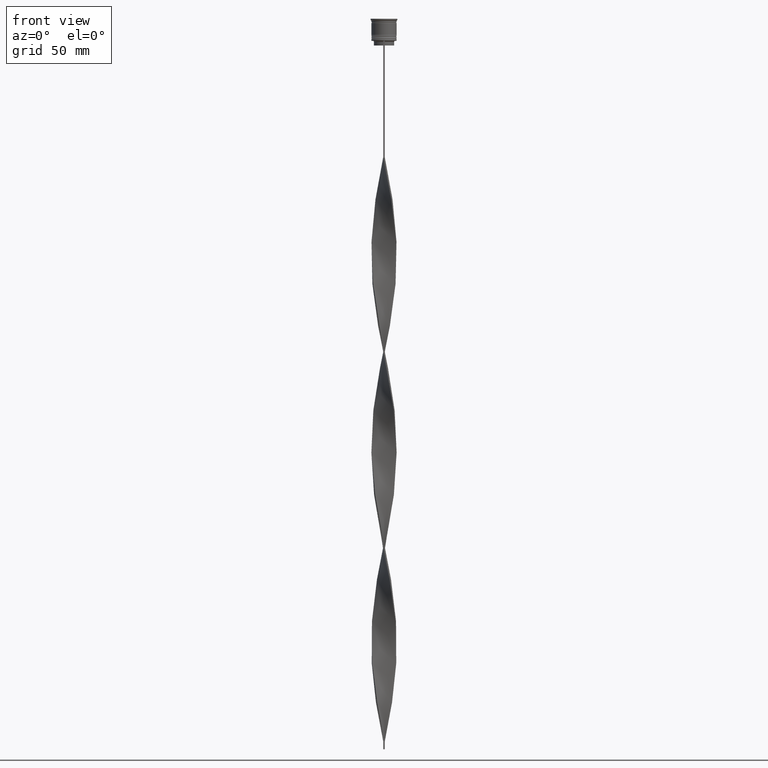
[diagram: clean part render]
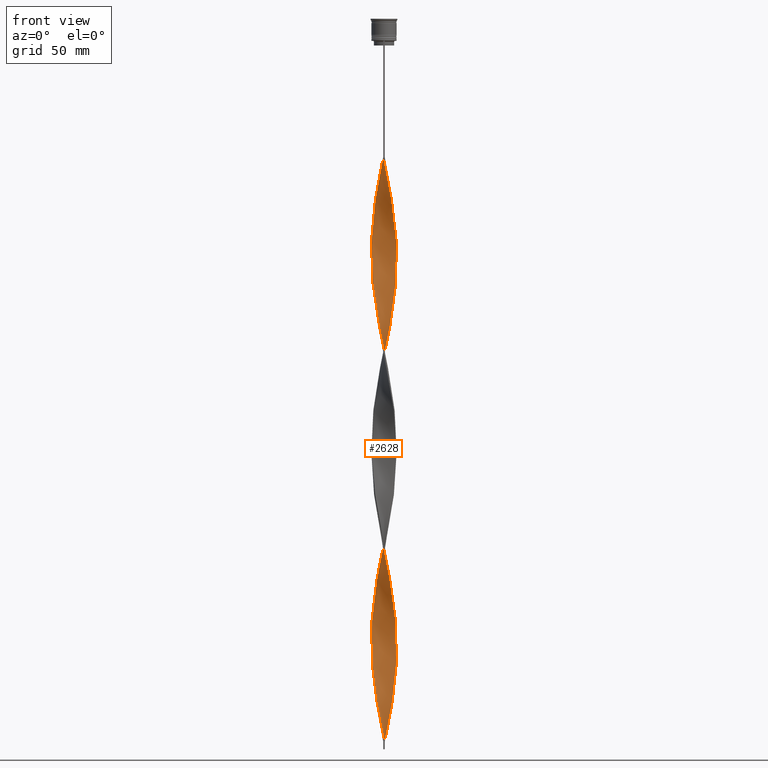
[diagram: same view with one face highlighted and labeled with its STEP entity id]
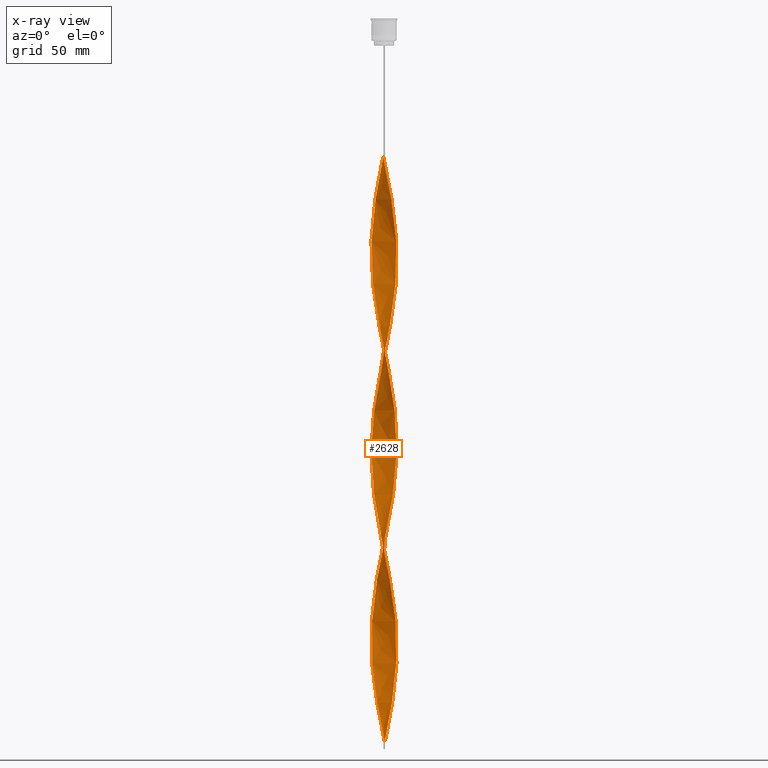
[diagram: x-ray of the same camera — body ghosted, the highlighted face saturated]
A machine part, front view. The second image highlights one B-rep face of the part: STEP entity #2628.
The next image is the same camera in x-ray: the body ghosted, the highlighted face saturated — about 0% of this face is hidden behind the body in this view.
In plain terms, the highlighted face is a freeform B-spline surface patch.
Its self-contained STEP definition (entity closure, byte-faithful):
#7 = CARTESIAN_POINT ( 'NONE',  ( 8.015471360206644746, -0.04710492232210114483, -270.8115942028985614 ) ) ;
#16 = CARTESIAN_POINT ( 'NONE',  ( -7.333114266084574950, 3.236577692648028748, -131.0144927536231876 ) ) ;
#21 = CARTESIAN_POINT ( 'NONE',  ( 3.729461898010225873, -7.095147211389628339, -109.5072463768115796 ) ) ;
#30 = CARTESIAN_POINT ( 'NONE',  ( 5.436559199960629307, -5.890146353472330176, -238.5507246376811565 ) ) ;
#42 = CARTESIAN_POINT ( 'NONE',  ( 0.5939902197518118765, 7.993570892838764763, -329.9565217391304373 ) ) ;
#47 = CARTESIAN_POINT ( 'NONE',  ( 1.584676165788138968, 7.857404243742526440, -206.2898550724637516 ) ) ;
#52 = CARTESIAN_POINT ( 'NONE',  ( 7.947228946841973674, 1.044773691512637104, -276.1884057971014386 ) ) ;
#60 = CARTESIAN_POINT ( 'NONE',  ( -1.584676165788137636, 7.857404243742519334, -340.7101449275362484 ) ) ;
#64 = CARTESIAN_POINT ( 'NONE',  ( -3.729461898010223209, 7.095147211389630115, -233.1739130434782510 ) ) ;
#67 = CARTESIAN_POINT ( 'NONE',  ( 5.505411142615667330, -5.825843127888297168, -120.2608695652173907 ) ) ;
#69 = CARTESIAN_POINT ( 'NONE',  ( -5.505411142615663778, -5.825843127888290951, -179.4057971014492807 ) ) ;
#72 = CARTESIAN_POINT ( 'NONE',  ( -7.730944694932262884, -2.117190148262229510, -157.8985507246376585 ) ) ;
#77 = CARTESIAN_POINT ( 'NONE',  ( 6.590928236321649258, 4.594592357818169326, -295.0072463768116791 ) ) ;
#83 = CARTESIAN_POINT ( 'NONE',  ( -7.586124921344943317, 2.646001252571963391, -262.7463768115941889 ) ) ;
#90 = CARTESIAN_POINT ( 'NONE',  ( 6.873049228353429463, -4.124462911050406966, -131.0144927536231876 ) ) ;
#94 = CARTESIAN_POINT ( 'NONE',  ( -2.122137340211640133, 7.749009424445332250, -96.06521739130434412 ) ) ;
#101 = CARTESIAN_POINT ( 'NONE',  ( 1.676915525582294952, 7.838236684360903261, -324.5797101449275033 ) ) ;
#109 = CARTESIAN_POINT ( 'NONE',  ( -0.04721499136463313401, 8.034200936960292694, -214.3550724637681242 ) ) ;
#117 = CARTESIAN_POINT ( 'NONE',  ( -8.018693425164364896, -0.5011683390727723619, -397.1666666666666856 ) ) ;
#124 = CARTESIAN_POINT ( 'NONE',  ( -3.645814369522656584, 7.138489867120500598, -351.4637681159420595 ) ) ;
#128 = CARTESIAN_POINT ( 'NONE',  ( -7.705527183036060102, -2.207906436308479936, -286.9420289855072497 ) ) ;
#132 = CARTESIAN_POINT ( 'NONE',  ( 1.140765448138979510, -7.952940848717254596, -96.06521739130434412 ) ) ;
#138 = CARTESIAN_POINT ( 'NONE',  ( -3.645814369522656584, 7.138489867120500598, -104.1304347826086882 ) ) ;
#144 = CARTESIAN_POINT ( 'NONE',  ( -0.5939902197518075466, -7.993570892838764763, -453.6231884057970660 ) ) ;
#149 = CARTESIAN_POINT ( 'NONE',  ( -2.639832812930095418, -7.568439913203885538, -324.5797101449275033 ) ) ;
#152 = CARTESIAN_POINT ( 'NONE',  ( -7.934400707984904599, -1.138106060579906043, -281.5652173913043725 ) ) ;
#155 = CARTESIAN_POINT ( 'NONE',  ( -7.586124921344937988, -2.646001252571960283, -407.9202898550724399 ) ) ;
#157 = CARTESIAN_POINT ( 'NONE',  ( -7.856552120720863286, 1.680833937442849368, -139.0797101449275317 ) ) ;
#173 = CARTESIAN_POINT ( 'NONE',  ( 1.140765448138979288, -7.952940848717255484, -343.3985507246376869 ) ) ;
#178 = CARTESIAN_POINT ( 'NONE',  ( -3.729461898010223209, 7.095147211389630115, -233.1739130434782510 ) ) ;
#182 = CARTESIAN_POINT ( 'NONE',  ( -3.157528285648546706, 7.387870401962427280, -348.7753623188405641 ) ) ;
#194 = CARTESIAN_POINT ( 'NONE',  ( 0.5939902197518079907, -7.993570892838771869, -340.7101449275362484 ) ) ;
#200 = CARTESIAN_POINT ( 'NONE',  ( 2.728603068017206645, -7.536890956966748156, -351.4637681159420595 ) ) ;
#214 = CARTESIAN_POINT ( 'NONE',  ( 2.728603068017206645, -7.536890956966748156, -351.4637681159420595 ) ) ;
#220 = CARTESIAN_POINT ( 'NONE',  ( -6.536472323464036727, -4.671738810705484468, -300.3840579710145562 ) ) ;
#238 = CARTESIAN_POINT ( 'NONE',  ( 5.839456248204610844, 5.518275516514861145, -429.4275362318841189 ) ) ;
#246 = CARTESIAN_POINT ( 'NONE',  ( -6.873049228353427686, 4.124462911050410518, -254.6811594202898448 ) ) ;
#264 = CARTESIAN_POINT ( 'NONE',  ( -1.140765448138979954, -7.952940848717248379, -203.6014492753623415 ) ) ;
#268 = CARTESIAN_POINT ( 'NONE',  ( 7.370647570865074272, -3.150167358427301334, -383.7246376811593791 ) ) ;
#284 = CARTESIAN_POINT ( 'NONE',  ( -5.903909729730553835, -5.449262689030142326, -176.7173913043478137 ) ) ;
#295 = CARTESIAN_POINT ( 'NONE',  ( 0.5000000000000008882, 8.000000000000003553, -458.9999999999999432 ) ) ;
#305 = CARTESIAN_POINT ( 'NONE',  ( -7.554502245351247147, 2.734978935174109616, -133.7028985507246546 ) ) ;
#310 = CARTESIAN_POINT ( 'NONE',  ( -0.4999999999999998890, -8.000000000000003553, -88.00000000000000000 ) ) ;
#317 = CARTESIAN_POINT ( 'NONE',  ( -3.244140533008800009, -7.350249393928923958, -192.8478260869565020 ) ) ;
#327 = CARTESIAN_POINT ( 'NONE',  ( 0.4999999999999989453, -7.999999999999996447, -211.6666666666666572 ) ) ;
#332 = CARTESIAN_POINT ( 'NONE',  ( 5.839456248204609956, 5.518275516514862034, -429.4275362318840621 ) ) ;
#338 = CARTESIAN_POINT ( 'NONE',  ( 7.856552120720863286, -1.680833937442848036, -262.7463768115941889 ) ) ;
#345 = CARTESIAN_POINT ( 'NONE',  ( -7.730944694932262884, -2.117190148262229510, -157.8985507246376585 ) ) ;
#350 = FACE_OUTER_BOUND ( 'NONE', #1363, .T. ) ;
#356 = CARTESIAN_POINT ( 'NONE',  ( 4.660847909256212951, 6.521234297798380375, -308.4492753623188150 ) ) ;
#364 = CARTESIAN_POINT ( 'NONE',  ( -7.370647570865068055, -3.150167358427297781, -410.6086956521738216 ) ) ;
#368 = CARTESIAN_POINT ( 'NONE',  ( 5.106912555500779050, -6.202423566746448458, -117.5724637681159379 ) ) ;
#376 = CARTESIAN_POINT ( 'NONE',  ( -1.676915525582294064, -7.838236684360903261, -200.9130434782608745 ) ) ;
#385 = CARTESIAN_POINT ( 'NONE',  ( 2.728603068017207534, 7.536890956966740163, -319.2028985507245693 ) ) ;
#389 = CARTESIAN_POINT ( 'NONE',  ( 0.5000000000000008882, 8.000000000000003553, -211.6666666666666572 ) ) ;
#392 = CARTESIAN_POINT ( 'NONE',  ( 8.012249295248937031, 0.5953781837169684898, -155.2101449275362199 ) ) ;
#394 = CARTESIAN_POINT ( 'NONE',  ( 5.106912555500778161, 6.202423566746439576, -305.7608695652173765 ) ) ;
#403 = CARTESIAN_POINT ( 'NONE',  ( 5.106912555500778161, 6.202423566746439576, -305.7608695652173196 ) ) ;
#408 = CARTESIAN_POINT ( 'NONE',  ( -7.155170220385204338, 3.654333464282641941, -257.3695652173913118 ) ) ;
#411 = CARTESIAN_POINT ( 'NONE',  ( 0.5939902197518079907, -7.993570892838771869, -93.37681159420290555 ) ) ;
#413 = CARTESIAN_POINT ( 'NONE',  ( -7.875764468519589556, -1.588379043952500513, -402.5434782608696196 ) ) ;
#421 = CARTESIAN_POINT ( 'NONE',  ( 7.155170220385199897, 3.654333464282636612, -289.6304347826086882 ) ) ;
#427 = CARTESIAN_POINT ( 'NONE',  ( -6.590928236321652811, 4.594592357818173767, -251.9927536231884915 ) ) ;
#436 = CARTESIAN_POINT ( 'NONE',  ( -5.436559199960629307, 5.890146353472331064, -114.8840579710144851 ) ) ;
#443 = CARTESIAN_POINT ( 'NONE',  ( -7.554502245351247147, 2.734978935174109616, -381.0362318840579974 ) ) ;
#449 = CARTESIAN_POINT ( 'NONE',  ( -8.012249295248937031, -0.5953781837169641600, -278.8768115942028203 ) ) ;
#458 = CARTESIAN_POINT ( 'NONE',  ( -4.134100453396768238, 6.889109332278574804, -354.1521739130434980 ) ) ;
#470 = CARTESIAN_POINT ( 'NONE',  ( -3.157528285648551147, -7.387870401962433498, -321.8913043478260647 ) ) ;
#476 = CARTESIAN_POINT ( 'NONE',  ( 2.213065603025611949, -7.723532520004569690, -101.4420289855072497 ) ) ;
#479 = CARTESIAN_POINT ( 'NONE',  ( -3.729461898010225429, -7.095147211389621233, -437.4927536231883778 ) ) ;
#487 = CARTESIAN_POINT ( 'NONE',  ( -3.244140533008799565, -7.350249393928923958, -440.1811594202897595 ) ) ;
#492 = CARTESIAN_POINT ( 'NONE',  ( 7.705527183036060102, 2.207906436308480380, -410.6086956521738216 ) ) ;
#495 = CARTESIAN_POINT ( 'NONE',  ( 4.660847909256214727, -6.521234297798388369, -362.2173913043478137 ) ) ;
#498 = CARTESIAN_POINT ( 'NONE',  ( 0.4999999999999989453, -7.999999999999996447, -458.9999999999999432 ) ) ;
#517 = CARTESIAN_POINT ( 'NONE',  ( 1.047214991364638914, 7.965799063039713523, -456.3115942028985614 ) ) ;
#522 = CARTESIAN_POINT ( 'NONE',  ( -3.244140533008800897, 7.350249393928931951, -230.4855072463767840 ) ) ;
#528 = B_SPLINE_CURVE_WITH_KNOTS ( 'NONE', 3,
 ( #1314, #1681, #3054, #2378 ),
 .UNSPECIFIED., .F., .F.,
 ( 4, 4 ),
 ( 0.000000000000000000, 1.000000000000000000 ),
 .UNSPECIFIED. ) ;
#540 = CARTESIAN_POINT ( 'NONE',  ( 5.106912555500779050, -6.202423566746448458, -364.9057971014492523 ) ) ;
#545 = CARTESIAN_POINT ( 'NONE',  ( -5.505411142615667330, 5.825843127888297168, -243.9275362318840337 ) ) ;
#560 = CARTESIAN_POINT ( 'NONE',  ( 5.436559199960635524, 5.890146353472334617, -432.1159420289855007 ) ) ;
#566 = CARTESIAN_POINT ( 'NONE',  ( -6.824099305140974181, -4.204957630413716174, -297.6956521739130039 ) ) ;
#583 = CARTESIAN_POINT ( 'NONE',  ( -3.729461898010225429, -7.095147211389621233, -190.1594202898550634 ) ) ;
#591 = CARTESIAN_POINT ( 'NONE',  ( -7.370647570865074272, 3.150167358427302222, -260.0579710144927503 ) ) ;
#608 = CARTESIAN_POINT ( 'NONE',  ( -7.856552120720862398, 1.680833937442849368, -139.0797101449275317 ) ) ;
#626 = CARTESIAN_POINT ( 'NONE',  ( -7.934400707984895718, 1.138106060579909817, -141.7681159420289703 ) ) ;
#635 = CARTESIAN_POINT ( 'NONE',  ( 7.705527183036052996, -2.207906436308480380, -260.0579710144927503 ) ) ;
#646 = CARTESIAN_POINT ( 'NONE',  ( -2.213065603025611949, -7.723532520004562585, -198.2246376811594359 ) ) ;
#651 = CARTESIAN_POINT ( 'NONE',  ( 0.5939902197518079907, -7.993570892838771869, -93.37681159420290555 ) ) ;
#658 = CARTESIAN_POINT ( 'NONE',  ( 5.033662151716653099, -6.262017190429803648, -235.8623188405797464 ) ) ;
#669 = CARTESIAN_POINT ( 'NONE',  ( 5.839456248204604627, -5.518275516514857593, -241.2391304347826519 ) ) ;
#675 = CARTESIAN_POINT ( 'NONE',  ( 7.333114266084581168, 3.236577692648030968, -415.9855072463768124 ) ) ;
#680 = CARTESIAN_POINT ( 'NONE',  ( 4.583881302556708448, -6.575563261354191447, -233.1739130434782510 ) ) ;
#689 = CARTESIAN_POINT ( 'NONE',  ( 6.873049228353425910, 4.124462911050398972, -292.3188405797101268 ) ) ;
#694 = CARTESIAN_POINT ( 'NONE',  ( 4.660847909256214727, -6.521234297798388369, -114.8840579710144851 ) ) ;
#700 = CARTESIAN_POINT ( 'NONE',  ( 5.903909729730553835, 5.449262689030141438, -300.3840579710145562 ) ) ;
#708 = CARTESIAN_POINT ( 'NONE',  ( -2.639832812930093198, 7.568439913203879321, -346.0869565217391255 ) ) ;
#713 = CARTESIAN_POINT ( 'NONE',  ( 6.536472323464036727, 4.671738810705485356, -176.7173913043478137 ) ) ;
#719 = CARTESIAN_POINT ( 'NONE',  ( 7.705527183036060102, 2.207906436308480380, -163.2753623188405641 ) ) ;
#722 = CARTESIAN_POINT ( 'NONE',  ( -2.728603068017206645, -7.536890956966740163, -195.5362318840579405 ) ) ;
#733 = CARTESIAN_POINT ( 'NONE',  ( 8.015471360206644746, -0.04710492232210114483, -270.8115942028985614 ) ) ;
#739 = CARTESIAN_POINT ( 'NONE',  ( 7.730944694932269989, -2.117190148262233951, -141.7681159420289703 ) ) ;
#740 = VERTEX_POINT ( 'NONE', #3130 ) ;
#746 = CARTESIAN_POINT ( 'NONE',  ( -6.873049228353423246, -4.124462911050403413, -415.9855072463768124 ) ) ;
#754 = CARTESIAN_POINT ( 'NONE',  ( -0.4999999999999998890, 7.999999999999996447, -335.3333333333333144 ) ) ;
#759 = CARTESIAN_POINT ( 'NONE',  ( -5.505411142615667330, 5.825843127888297168, -243.9275362318840337 ) ) ;
#765 = CARTESIAN_POINT ( 'NONE',  ( -5.436559199960629307, 5.890146353472331064, -362.2173913043478137 ) ) ;
#773 = CARTESIAN_POINT ( 'NONE',  ( 8.012249295248929926, -0.5953781837169733748, -268.1231884057971797 ) ) ;
#779 = CARTESIAN_POINT ( 'NONE',  ( 7.155170220385205226, -3.654333464282639721, -133.7028985507246546 ) ) ;
#785 = CARTESIAN_POINT ( 'NONE',  ( 7.554502245351253364, 2.734978935174110948, -165.9637681159420595 ) ) ;
#788 = CARTESIAN_POINT ( 'NONE',  ( -5.106912555500773720, -6.202423566746443129, -429.4275362318840621 ) ) ;
#806 = CARTESIAN_POINT ( 'NONE',  ( -6.187964285834326006, -5.095007163610167922, -303.0724637681159379 ) ) ;
#809 = VERTEX_POINT ( 'NONE', #4191 ) ;
#812 = CARTESIAN_POINT ( 'NONE',  ( 6.824099305140973293, 4.204957630413717062, -174.0289855072463752 ) ) ;
#815 = CARTESIAN_POINT ( 'NONE',  ( -7.934400707984895718, 1.138106060579909817, -389.1014492753622562 ) ) ;
#828 = CARTESIAN_POINT ( 'NONE',  ( -7.554502245351254253, -2.734978935174111836, -289.6304347826086882 ) ) ;
#832 = CARTESIAN_POINT ( 'NONE',  ( 6.873049228353429463, -4.124462911050406966, -378.3478260869565020 ) ) ;
#835 = CARTESIAN_POINT ( 'NONE',  ( -7.730944694932262884, -2.117190148262229510, -405.2318840579709445 ) ) ;
#842 = CARTESIAN_POINT ( 'NONE',  ( -1.676915525582294064, -7.838236684360903261, -448.2463768115941889 ) ) ;
#847 = CARTESIAN_POINT ( 'NONE',  ( 3.729461898010225873, -7.095147211389628339, -356.8405797101449366 ) ) ;
#851 = CARTESIAN_POINT ( 'NONE',  ( -2.122137340211641021, -7.749009424445339356, -327.2681159420290555 ) ) ;
#871 = CARTESIAN_POINT ( 'NONE',  ( 0.5000000000000008882, 8.000000000000003553, -458.9999999999999432 ) ) ;
#876 = CARTESIAN_POINT ( 'NONE',  ( -7.586124921344943317, 2.646001252571962947, -262.7463768115941889 ) ) ;
#888 = CARTESIAN_POINT ( 'NONE',  ( 0.4999999999999989453, -7.999999999999996447, -458.9999999999999432 ) ) ;
#893 = CARTESIAN_POINT ( 'NONE',  ( 1.676915525582295841, -7.838236684360910367, -346.0869565217391255 ) ) ;
#897 = CARTESIAN_POINT ( 'NONE',  ( -3.157528285648551147, -7.387870401962433498, -321.8913043478260647 ) ) ;
#912 = CARTESIAN_POINT ( 'NONE',  ( 1.047214991364632919, -7.965799063039709971, -214.3550724637681242 ) ) ;
#918 = CARTESIAN_POINT ( 'NONE',  ( -7.705527183036060102, -2.207906436308479936, -286.9420289855072497 ) ) ;
#935 = CARTESIAN_POINT ( 'NONE',  ( -4.134100453396768238, 6.889109332278574804, -106.8188405797101268 ) ) ;
#941 = CARTESIAN_POINT ( 'NONE',  ( 4.583881302556717330, 6.575563261354193223, -437.4927536231883778 ) ) ;
#957 = CARTESIAN_POINT ( 'NONE',  ( 7.333114266084573174, -3.236577692648032745, -254.6811594202898448 ) ) ;
#974 = CARTESIAN_POINT ( 'NONE',  ( -1.047214991364636028, 7.965799063039706418, -90.68840579710145278 ) ) ;
#978 = CARTESIAN_POINT ( 'NONE',  ( 7.554502245351253364, 2.734978935174110948, -413.2971014492753739 ) ) ;
#984 = CARTESIAN_POINT ( 'NONE',  ( 8.018693425164364896, 0.5011683390727713627, -273.4999999999999432 ) ) ;
#994 = CARTESIAN_POINT ( 'NONE',  ( 4.583881302556708448, -6.575563261354191447, -233.1739130434782510 ) ) ;
#1000 = CARTESIAN_POINT ( 'NONE',  ( 2.122137340211643686, 7.749009424445339356, -450.9347826086956275 ) ) ;
#1007 = CARTESIAN_POINT ( 'NONE',  ( -4.214783263011647740, -6.840045028850322950, -187.4710144927535964 ) ) ;
#1019 = CARTESIAN_POINT ( 'NONE',  ( 7.875764468519589556, 1.588379043952496072, -278.8768115942028203 ) ) ;
#1023 = CARTESIAN_POINT ( 'NONE',  ( 5.436559199960635524, 5.890146353472334617, -432.1159420289855007 ) ) ;
#1028 = CARTESIAN_POINT ( 'NONE',  ( 6.536472323464028733, -4.671738810705482692, -246.6159420289854722 ) ) ;
#1035 = CARTESIAN_POINT ( 'NONE',  ( -5.106912555500773720, -6.202423566746443129, -429.4275362318841189 ) ) ;
#1040 = CARTESIAN_POINT ( 'NONE',  ( 7.934400707984902823, 1.138106060579908485, -157.8985507246376585 ) ) ;
#1045 = CARTESIAN_POINT ( 'NONE',  ( 6.590928236321652811, -4.594592357818173767, -128.3260869565217206 ) ) ;
#1047 = CARTESIAN_POINT ( 'NONE',  ( 6.590928236321649258, 4.594592357818169326, -295.0072463768116222 ) ) ;
#1054 = CARTESIAN_POINT ( 'NONE',  ( 7.586124921344937988, 2.646001252571958950, -284.2536231884058111 ) ) ;
#1061 = CARTESIAN_POINT ( 'NONE',  ( -4.660847909256214727, 6.521234297798387480, -238.5507246376811565 ) ) ;
#1067 = CARTESIAN_POINT ( 'NONE',  ( 2.728603068017206645, -7.536890956966748156, -104.1304347826086882 ) ) ;
#1070 = CARTESIAN_POINT ( 'NONE',  ( 2.728603068017207534, 7.536890956966740163, -319.2028985507245693 ) ) ;
#1073 = CARTESIAN_POINT ( 'NONE',  ( -5.033662151716653987, 6.262017190429803648, -112.1956521739130466 ) ) ;
#1080 = CARTESIAN_POINT ( 'NONE',  ( -6.824099305140966187, 4.204957630413713510, -372.9710144927536248 ) ) ;
#1086 = CARTESIAN_POINT ( 'NONE',  ( -5.903909729730557387, 5.449262689030150320, -246.6159420289854722 ) ) ;
#1090 = CARTESIAN_POINT ( 'NONE',  ( 2.639832812930094530, 7.568439913203885538, -200.9130434782608745 ) ) ;
#1093 = CARTESIAN_POINT ( 'NONE',  ( -2.213065603025611505, -7.723532520004561697, -445.5579710144927503 ) ) ;
#1102 = CARTESIAN_POINT ( 'NONE',  ( -2.122137340211640577, 7.749009424445332250, -343.3985507246376869 ) ) ;
#1107 = CARTESIAN_POINT ( 'NONE',  ( -7.947228946841980779, 1.044773691512640434, -270.8115942028985614 ) ) ;
#1110 = CARTESIAN_POINT ( 'NONE',  ( 4.214783263011651293, -6.840045028850329167, -112.1956521739130466 ) ) ;
#1113 = CARTESIAN_POINT ( 'NONE',  ( -0.04721499136463834512, -8.034200936960287365, -456.3115942028985614 ) ) ;
#1115 = CARTESIAN_POINT ( 'NONE',  ( -6.536472323464030509, 4.671738810705480915, -122.9492753623188577 ) ) ;
#1127 = CARTESIAN_POINT ( 'NONE',  ( 7.554502245351254253, 2.734978935174110948, -165.9637681159420595 ) ) ;
#1132 = CARTESIAN_POINT ( 'NONE',  ( 7.155170220385205226, -3.654333464282639721, -133.7028985507246546 ) ) ;
#1138 = CARTESIAN_POINT ( 'NONE',  ( -7.333114266084574950, 3.236577692648028748, -131.0144927536231876 ) ) ;
#1151 = VECTOR ( 'NONE', #3659, 1000.000000000000000 ) ;
#1154 = CARTESIAN_POINT ( 'NONE',  ( 4.214783263011650405, -6.840045028850329167, -359.5289855072463752 ) ) ;
#1159 = CARTESIAN_POINT ( 'NONE',  ( 5.505411142615667330, -5.825843127888297168, -367.5942028985506909 ) ) ;
#1162 = CARTESIAN_POINT ( 'NONE',  ( -3.244140533008800009, -7.350249393928923958, -440.1811594202898164 ) ) ;
#1175 = CARTESIAN_POINT ( 'NONE',  ( 4.583881302556717330, 6.575563261354193223, -437.4927536231883778 ) ) ;
#1181 = CARTESIAN_POINT ( 'NONE',  ( 1.047214991364638914, 7.965799063039713523, -208.9782608695652186 ) ) ;
#1185 = CARTESIAN_POINT ( 'NONE',  ( -6.536472323464030509, 4.671738810705480915, -370.2826086956521863 ) ) ;
#1196 = CARTESIAN_POINT ( 'NONE',  ( 7.554502245351254253, 2.734978935174110948, -413.2971014492753739 ) ) ;
#1202 = CARTESIAN_POINT ( 'NONE',  ( -7.947228946841980779, 1.044773691512640434, -270.8115942028985614 ) ) ;
#1222 = CARTESIAN_POINT ( 'NONE',  ( 8.018693425164372002, -0.5011683390727734722, -397.1666666666666288 ) ) ;
#1228 = CARTESIAN_POINT ( 'NONE',  ( 0.5000000000000008882, 8.000000000000003553, -211.6666666666666572 ) ) ;
#1245 = CARTESIAN_POINT ( 'NONE',  ( -1.584676165788143409, -7.857404243742526440, -329.9565217391304373 ) ) ;
#1251 = CARTESIAN_POINT ( 'NONE',  ( 1.676915525582295841, -7.838236684360910367, -346.0869565217391255 ) ) ;
#1267 = CARTESIAN_POINT ( 'NONE',  ( -7.370647570865068055, -3.150167358427297781, -163.2753623188405641 ) ) ;
#1271 = CARTESIAN_POINT ( 'NONE',  ( 3.157528285648550259, 7.387870401962433498, -445.5579710144927503 ) ) ;
#1288 = CARTESIAN_POINT ( 'NONE',  ( -7.875764468519589556, -1.588379043952500291, -155.2101449275362199 ) ) ;
#1311 = CARTESIAN_POINT ( 'NONE',  ( -1.584676165788137636, 7.857404243742519334, -93.37681159420290555 ) ) ;
#1314 = CARTESIAN_POINT ( 'NONE',  ( 0.5000000000000008882, 8.000000000000003553, -458.9999999999999432 ) ) ;
#1316 = CARTESIAN_POINT ( 'NONE',  ( 8.018693425164370225, -0.5011683390727733611, -397.1666666666666856 ) ) ;
#1322 = CARTESIAN_POINT ( 'NONE',  ( 1.140765448138977733, 7.952940848717247491, -327.2681159420290555 ) ) ;
#1323 = CARTESIAN_POINT ( 'NONE',  ( -0.4999999999999998890, -8.000000000000003553, -88.00000000000000000 ) ) ;
#1331 = CARTESIAN_POINT ( 'NONE',  ( 4.134100453396767350, -6.889109332278575692, -230.4855072463767840 ) ) ;
#1342 = CARTESIAN_POINT ( 'NONE',  ( 1.047214991364632919, -7.965799063039709971, -214.3550724637681242 ) ) ;
#1352 = CARTESIAN_POINT ( 'NONE',  ( -0.04721499136463833818, -8.034200936960285588, -208.9782608695651902 ) ) ;
#1356 = CARTESIAN_POINT ( 'NONE',  ( 7.947228946841980779, -1.044773691512637548, -394.4782608695651902 ) ) ;
#1363 = EDGE_LOOP ( 'NONE', ( #2823, #3017, #3855, #1977 ) ) ;
#1364 = CARTESIAN_POINT ( 'NONE',  ( 7.111726286817905418, -3.738176450121948768, -251.9927536231884631 ) ) ;
#1375 = CARTESIAN_POINT ( 'NONE',  ( -8.018693425164364896, -0.5011683390727723619, -397.1666666666666288 ) ) ;
#1379 = CARTESIAN_POINT ( 'NONE',  ( 6.247418983026105543, -5.021927523424159823, -125.6376811594202820 ) ) ;
#1382 = CARTESIAN_POINT ( 'NONE',  ( -0.4999999999999998890, -8.000000000000003553, -88.00000000000000000 ) ) ;
#1384 = CARTESIAN_POINT ( 'NONE',  ( 7.730944694932264660, 2.117190148262227289, -281.5652173913043725 ) ) ;
#1391 = CARTESIAN_POINT ( 'NONE',  ( -8.012249295248929926, 0.5953781837169687119, -391.7898550724637516 ) ) ;
#1397 = CARTESIAN_POINT ( 'NONE',  ( -2.728603068017204425, 7.536890956966749044, -227.7971014492753454 ) ) ;
#1400 = CARTESIAN_POINT ( 'NONE',  ( 7.934400707984902823, 1.138106060579908485, -157.8985507246376585 ) ) ;
#1402 = CARTESIAN_POINT ( 'NONE',  ( 6.824099305140966187, -4.204957630413714398, -249.3043478260869392 ) ) ;
#1405 = CARTESIAN_POINT ( 'NONE',  ( -7.155170220385199897, -3.654333464282636612, -165.9637681159420595 ) ) ;
#1410 = CARTESIAN_POINT ( 'NONE',  ( -5.436559199960629307, 5.890146353472331064, -362.2173913043478137 ) ) ;
#1416 = CARTESIAN_POINT ( 'NONE',  ( -3.244140533008800897, 7.350249393928931951, -230.4855072463767840 ) ) ;
#1423 = CARTESIAN_POINT ( 'NONE',  ( 7.947228946841980779, -1.044773691512637548, -147.1449275362318758 ) ) ;
#1437 = CARTESIAN_POINT ( 'NONE',  ( -5.033662151716653987, 6.262017190429803648, -359.5289855072463752 ) ) ;
#1442 = CARTESIAN_POINT ( 'NONE',  ( -1.140765448138979510, 7.952940848717255484, -219.7318840579710297 ) ) ;
#1446 = CARTESIAN_POINT ( 'NONE',  ( 1.676915525582295841, -7.838236684360910367, -98.75362318840578268 ) ) ;
#1449 = CARTESIAN_POINT ( 'NONE',  ( -4.214783263011647740, -6.840045028850322950, -434.8043478260869392 ) ) ;
#1452 = CARTESIAN_POINT ( 'NONE',  ( -1.584676165788137636, 7.857404243742519334, -93.37681159420290555 ) ) ;
#1462 = CARTESIAN_POINT ( 'NONE',  ( 1.047214991364638914, 7.965799063039713523, -208.9782608695651902 ) ) ;
#1463 =( BOUNDED_SURFACE ( )  B_SPLINE_SURFACE ( 1, 2, ( 
 ( #310, #2974, #651, #2663, #1682, #3676, #2687, #3011, #21, #2362, #694, #368, #2096, #2791, #1379, #3423, #4131, #779, #2707, #1705, #739, #3447, #2769, #2401, #4045, #1770, #1040, #3803, #3777, #1127, #3736, #3712, #3035, #713, #2466, #2726, #2379, #2034, #2055, #3383, #3073, #3359, #3094, #4109, #47, #1462, #389, #109, #1728, #1442, #3055, #4087, #1397, #1416, #64, #4062, #1061, #2076, #759, #1086, #3403, #427, #2423, #408, #1750, #83, #2748, #3757, #1107, #2443, #2118, #449, #1796, #3116, #128, #828, #2139, #2510, #2160, #3470, #806, #1863, #1550, #3227, #3187, #1837, #1531, #470, #149, #3513, #1245, #2878, #3137, #2529, #194, #173, #893, #2858, #214, #3489, #847, #1154, #2839, #540, #2555, #4198, #2491, #4221, #3207, #1815, #3847, #3559, #3161, #1484, #2576, #1222, #1512, #3896, #3872, #4243, #492, #1196, #3538, #1576, #2208, #2905, #2228, #238, #560, #2182, #1175, #3825, #2815, #1901, #4156, #1882, #4179, #517, #871 ),
 ( #2275, #974, #1311, #2946, #4285, #3937, #3295, #935, #2596, #4308, #3337, #1678, #3609, #2659, #3999, #1598, #16, #305, #3628, #608, #626, #2312, #2968, #1968, #3916, #1288, #345, #1636, #1267, #2640, #4327, #3980, #2335, #284, #3318, #3645, #1659, #2011, #583, #3007, #3580, #646, #1989, #264, #1948, #1352, #327, #912, #2248, #3671, #2988, #1926, #3275, #1331, #994, #2927, #2296, #669, #2618, #1617, #3253, #3963, #957, #4264, #2682, #3729, #3417, #773, #733, #3708, #3398, #1019, #2030, #1054, #3111, #421, #689, #77, #2072, #2049, #2764, #403, #2091, #2703, #2720, #3030, #385, #2418, #101, #1744, #42, #1764, #754, #2357, #60, #1102, #708, #4024, #124, #3088, #3377, #1437, #1410, #1790, #2374, #3067, #1080, #3439, #4080, #443, #4104, #2111, #2438, #1391, #3051, #1375, #3689, #3772, #3355, #3752, #364, #1724, #4057, #1699, #2394, #2741, #4040, #1035, #4148, #2853, #3181, #487, #1832, #1479, #842, #2809, #144, #1856, #888 ) ),
 .UNSPECIFIED., .F., .F., .F. ) 
 B_SPLINE_SURFACE_WITH_KNOTS ( ( 2, 2 ),
 ( 3, 2, 2, 2, 2, 2, 2, 2, 2, 2, 2, 2, 2, 2, 2, 2, 2, 2, 2, 2, 2, 2, 2, 2, 2, 2, 2, 2, 2, 2, 2, 2, 2, 2, 2, 2, 2, 2, 2, 2, 2, 2, 2, 2, 2, 2, 2, 2, 2, 2, 2, 2, 2, 2, 2, 2, 2, 2, 2, 2, 2, 2, 2, 2, 2, 2, 2, 2, 2, 3 ),
 ( 0.000000000000000000, 1.000000000000000000 ),
 ( 0.000000000000000000, 0.01086956521739130405, 0.02173913043478260809, 0.03260869565217391214, 0.04347826086956521618, 0.05434782608695652023, 0.06521739130434782428, 0.07608695652173913526, 0.08695652173913043237, 0.09782608695652174335, 0.1086956521739130405, 0.1195652173913043514, 0.1304347826086956486, 0.1413043478260869457, 0.1521739130434782705, 0.1630434782608695676, 0.1739130434782608647, 0.1847826086956521618, 0.1956521739130434867, 0.2065217391304347838, 0.2173913043478260809, 0.2282608695652173780, 0.2391304347826087029, 0.2500000000000000000, 0.2608695652173912971, 0.2717391304347825942, 0.2826086956521738913, 0.2934782608695652439, 0.3043478260869565410, 0.3152173913043478382, 0.3260869565217391353, 0.3369565217391304324, 0.3478260869565217295, 0.3586956521739130266, 0.3695652173913043237, 0.3804347826086956763, 0.3913043478260869734, 0.4021739130434782705, 0.4130434782608695676, 0.4239130434782608647, 0.4347826086956521618, 0.4456521739130434590, 0.4565217391304347561, 0.4673913043478261087, 0.4782608695652174058, 0.4891304347826087029, 0.5000000000000000000, 0.5108695652173913526, 0.5217391304347825942, 0.5326086956521739468, 0.5434782608695651884, 0.5543478260869565410, 0.5652173913043477826, 0.5760869565217391353, 0.5869565217391304879, 0.5978260869565217295, 0.6086956521739130821, 0.6195652173913043237, 0.6304347826086956763, 0.6413043478260869179, 0.6521739130434782705, 0.6630434782608695121, 0.6739130434782608647, 0.6847826086956522174, 0.6956521739130434590, 0.7065217391304348116, 0.7173913043478260532, 0.7282608695652174058, 0.7391304347826086474, 0.7500000000000000000 ),
 .UNSPECIFIED. ) 
 GEOMETRIC_REPRESENTATION_ITEM ( )  RATIONAL_B_SPLINE_SURFACE ( (
 ( 1.000000000000000000, 0.9976687691905391508, 1.000000000000000000, 0.9976687691905391508, 1.000000000000000000, 0.9976687691905391508, 1.000000000000000000, 0.9976687691905391508, 1.000000000000000000, 0.9976687691905391508, 1.000000000000000000, 0.9976687691905391508, 1.000000000000000000, 0.9976687691905391508, 1.000000000000000000, 0.9976687691905391508, 1.000000000000000000, 0.9976687691905391508, 1.000000000000000000, 0.9976687691905391508, 1.000000000000000000, 0.9976687691905391508, 1.000000000000000000, 0.9976687691905391508, 1.000000000000000000, 0.9976687691905391508, 1.000000000000000000, 0.9976687691905391508, 1.000000000000000000, 0.9976687691905391508, 1.000000000000000000, 0.9976687691905391508, 1.000000000000000000, 0.9976687691905391508, 1.000000000000000000, 0.9976687691905391508, 1.000000000000000000, 0.9976687691905391508, 1.000000000000000000, 0.9976687691905391508, 1.000000000000000000, 0.9976687691905391508, 1.000000000000000000, 0.9976687691905391508, 1.000000000000000000, 0.9976687691905391508, 1.000000000000000000, 0.9976687691905391508, 1.000000000000000000, 0.9976687691905391508, 1.000000000000000000, 0.9976687691905391508, 1.000000000000000000, 0.9976687691905391508, 1.000000000000000000, 0.9976687691905391508, 1.000000000000000000, 0.9976687691905391508, 1.000000000000000000, 0.9976687691905391508, 1.000000000000000000, 0.9976687691905391508, 1.000000000000000000, 0.9976687691905391508, 1.000000000000000000, 0.9976687691905391508, 1.000000000000000000, 0.9976687691905391508, 1.000000000000000000, 0.9976687691905391508, 1.000000000000000000, 0.9976687691905391508, 1.000000000000000000, 0.9976687691905391508, 1.000000000000000000, 0.9976687691905391508, 1.000000000000000000, 0.9976687691905391508, 1.000000000000000000, 0.9976687691905391508, 1.000000000000000000, 0.9976687691905391508, 1.000000000000000000, 0.9976687691905391508, 1.000000000000000000, 0.9976687691905391508, 1.000000000000000000, 0.9976687691905391508, 1.000000000000000000, 0.9976687691905391508, 1.000000000000000000, 0.9976687691905391508, 1.000000000000000000, 0.9976687691905391508, 1.000000000000000000, 0.9976687691905391508, 1.000000000000000000, 0.9976687691905391508, 1.000000000000000000, 0.9976687691905391508, 1.000000000000000000, 0.9976687691905391508, 1.000000000000000000, 0.9976687691905391508, 1.000000000000000000, 0.9976687691905391508, 1.000000000000000000, 0.9976687691905391508, 1.000000000000000000, 0.9976687691905391508, 1.000000000000000000, 0.9976687691905391508, 1.000000000000000000, 0.9976687691905391508, 1.000000000000000000, 0.9976687691905391508, 1.000000000000000000, 0.9976687691905391508, 1.000000000000000000, 0.9976687691905391508, 1.000000000000000000, 0.9976687691905391508, 1.000000000000000000, 0.9976687691905391508, 1.000000000000000000, 0.9976687691905391508, 1.000000000000000000, 0.9976687691905391508, 1.000000000000000000, 0.9976687691905391508, 1.000000000000000000, 0.9976687691905391508, 1.000000000000000000, 0.9976687691905391508, 1.000000000000000000, 0.9976687691905391508, 1.000000000000000000, 0.9976687691905391508, 1.000000000000000000),
 ( 1.000000000000000000, 0.9976687691905391508, 1.000000000000000000, 0.9976687691905391508, 1.000000000000000000, 0.9976687691905391508, 1.000000000000000000, 0.9976687691905391508, 1.000000000000000000, 0.9976687691905391508, 1.000000000000000000, 0.9976687691905391508, 1.000000000000000000, 0.9976687691905391508, 1.000000000000000000, 0.9976687691905391508, 1.000000000000000000, 0.9976687691905391508, 1.000000000000000000, 0.9976687691905391508, 1.000000000000000000, 0.9976687691905391508, 1.000000000000000000, 0.9976687691905391508, 1.000000000000000000, 0.9976687691905391508, 1.000000000000000000, 0.9976687691905391508, 1.000000000000000000, 0.9976687691905391508, 1.000000000000000000, 0.9976687691905391508, 1.000000000000000000, 0.9976687691905391508, 1.000000000000000000, 0.9976687691905391508, 1.000000000000000000, 0.9976687691905391508, 1.000000000000000000, 0.9976687691905391508, 1.000000000000000000, 0.9976687691905391508, 1.000000000000000000, 0.9976687691905391508, 1.000000000000000000, 0.9976687691905391508, 1.000000000000000000, 0.9976687691905391508, 1.000000000000000000, 0.9976687691905391508, 1.000000000000000000, 0.9976687691905391508, 1.000000000000000000, 0.9976687691905391508, 1.000000000000000000, 0.9976687691905391508, 1.000000000000000000, 0.9976687691905391508, 1.000000000000000000, 0.9976687691905391508, 1.000000000000000000, 0.9976687691905391508, 1.000000000000000000, 0.9976687691905391508, 1.000000000000000000, 0.9976687691905391508, 1.000000000000000000, 0.9976687691905391508, 1.000000000000000000, 0.9976687691905391508, 1.000000000000000000, 0.9976687691905391508, 1.000000000000000000, 0.9976687691905391508, 1.000000000000000000, 0.9976687691905391508, 1.000000000000000000, 0.9976687691905391508, 1.000000000000000000, 0.9976687691905391508, 1.000000000000000000, 0.9976687691905391508, 1.000000000000000000, 0.9976687691905391508, 1.000000000000000000, 0.9976687691905391508, 1.000000000000000000, 0.9976687691905391508, 1.000000000000000000, 0.9976687691905391508, 1.000000000000000000, 0.9976687691905391508, 1.000000000000000000, 0.9976687691905391508, 1.000000000000000000, 0.9976687691905391508, 1.000000000000000000, 0.9976687691905391508, 1.000000000000000000, 0.9976687691905391508, 1.000000000000000000, 0.9976687691905391508, 1.000000000000000000, 0.9976687691905391508, 1.000000000000000000, 0.9976687691905391508, 1.000000000000000000, 0.9976687691905391508, 1.000000000000000000, 0.9976687691905391508, 1.000000000000000000, 0.9976687691905391508, 1.000000000000000000, 0.9976687691905391508, 1.000000000000000000, 0.9976687691905391508, 1.000000000000000000, 0.9976687691905391508, 1.000000000000000000, 0.9976687691905391508, 1.000000000000000000, 0.9976687691905391508, 1.000000000000000000, 0.9976687691905391508, 1.000000000000000000, 0.9976687691905391508, 1.000000000000000000, 0.9976687691905391508, 1.000000000000000000, 0.9976687691905391508, 1.000000000000000000, 0.9976687691905391508, 1.000000000000000000, 0.9976687691905391508, 1.000000000000000000, 0.9976687691905391508, 1.000000000000000000, 0.9976687691905391508, 1.000000000000000000) ) ) 
 REPRESENTATION_ITEM ( '' )  SURFACE ( )  );
#1467 = CARTESIAN_POINT ( 'NONE',  ( 4.660847909256214727, -6.521234297798388369, -114.8840579710144851 ) ) ;
#1479 = CARTESIAN_POINT ( 'NONE',  ( -2.213065603025611949, -7.723532520004562585, -445.5579710144927503 ) ) ;
#1484 = CARTESIAN_POINT ( 'NONE',  ( 7.875764468519596662, -1.588379043952502512, -391.7898550724637516 ) ) ;
#1490 = CARTESIAN_POINT ( 'NONE',  ( 1.140765448138979510, -7.952940848717254596, -343.3985507246376869 ) ) ;
#1493 = CARTESIAN_POINT ( 'NONE',  ( -6.590928236321648370, -4.594592357818170214, -418.6739130434783078 ) ) ;
#1512 = CARTESIAN_POINT ( 'NONE',  ( 8.015471360206651852, 0.04710492232209777946, -399.8550724637680673 ) ) ;
#1517 = CARTESIAN_POINT ( 'NONE',  ( -4.660847909256214727, 6.521234297798387480, -238.5507246376811565 ) ) ;
#1520 = CARTESIAN_POINT ( 'NONE',  ( -7.370647570865068055, -3.150167358427297781, -410.6086956521738216 ) ) ;
#1531 = CARTESIAN_POINT ( 'NONE',  ( -3.645814369522663245, -7.138489867120505039, -319.2028985507245693 ) ) ;
#1536 = CARTESIAN_POINT ( 'NONE',  ( 5.903909729730559164, -5.449262689030147655, -370.2826086956521863 ) ) ;
#1550 = CARTESIAN_POINT ( 'NONE',  ( -5.436559199960636413, -5.890146353472333729, -308.4492753623188150 ) ) ;
#1556 = CARTESIAN_POINT ( 'NONE',  ( -1.676915525582294064, 7.838236684360910367, -222.4202898550724399 ) ) ;
#1576 = CARTESIAN_POINT ( 'NONE',  ( 7.111726286817910747, 3.738176450121950101, -418.6739130434783078 ) ) ;
#1582 = CARTESIAN_POINT ( 'NONE',  ( 0.04721499136463628427, -8.034200936960294470, -338.0217391304347530 ) ) ;
#1598 = CARTESIAN_POINT ( 'NONE',  ( -7.111726286817904530, 3.738176450121948324, -128.3260869565217206 ) ) ;
#1602 = CARTESIAN_POINT ( 'NONE',  ( 7.934400707984902823, 1.138106060579908485, -405.2318840579709445 ) ) ;
#1617 = CARTESIAN_POINT ( 'NONE',  ( 6.536472323464028733, -4.671738810705482692, -246.6159420289854722 ) ) ;
#1636 = CARTESIAN_POINT ( 'NONE',  ( -7.586124921344937988, -2.646001252571960283, -160.5869565217391823 ) ) ;
#1643 = CARTESIAN_POINT ( 'NONE',  ( 7.705527183036060102, 2.207906436308480380, -410.6086956521738216 ) ) ;
#1651 = CARTESIAN_POINT ( 'NONE',  ( 7.875764468519589556, 1.588379043952496072, -278.8768115942028771 ) ) ;
#1659 = CARTESIAN_POINT ( 'NONE',  ( -4.660847909256212063, -6.521234297798381263, -184.7826086956521578 ) ) ;
#1664 = CARTESIAN_POINT ( 'NONE',  ( 1.584676165788138968, 7.857404243742526440, -453.6231884057970660 ) ) ;
#1670 = CARTESIAN_POINT ( 'NONE',  ( 0.4999999999999989453, -7.999999999999996447, -211.6666666666666572 ) ) ;
#1678 = CARTESIAN_POINT ( 'NONE',  ( -5.839456248204605515, 5.518275516514855816, -117.5724637681159379 ) ) ;
#1681 = CARTESIAN_POINT ( 'NONE',  ( 0.5000000000000002220, 2.666666666666670515, -458.9999999999999432 ) ) ;
#1682 = CARTESIAN_POINT ( 'NONE',  ( 1.676915525582295841, -7.838236684360910367, -98.75362318840578268 ) ) ;
#1688 = CARTESIAN_POINT ( 'NONE',  ( 3.729461898010222320, 7.095147211389622122, -313.8260869565216922 ) ) ;
#1699 = CARTESIAN_POINT ( 'NONE',  ( -6.590928236321648370, -4.594592357818170214, -418.6739130434783078 ) ) ;
#1705 = CARTESIAN_POINT ( 'NONE',  ( 7.586124921344943317, -2.646001252571964280, -139.0797101449275317 ) ) ;
#1713 = CARTESIAN_POINT ( 'NONE',  ( 6.873049228353425910, 4.124462911050398972, -292.3188405797101268 ) ) ;
#1724 = CARTESIAN_POINT ( 'NONE',  ( -7.155170220385199897, -3.654333464282636612, -413.2971014492753739 ) ) ;
#1728 = CARTESIAN_POINT ( 'NONE',  ( -0.5939902197518064364, 7.993570892838771869, -217.0434782608695627 ) ) ;
#1733 = CARTESIAN_POINT ( 'NONE',  ( 4.214783263011648629, 6.840045028850322062, -311.1376811594203673 ) ) ;
#1735 =( BOUNDED_CURVE ( )  B_SPLINE_CURVE ( 2, ( #1382, #3453, #411, #132, #1446, #476, #1067, #2099, #1754, #1110, #1467, #1776, #67, #2795, #3781, #1045, #90, #1132, #3741, #2711, #4048, #2383, #1423, #3386, #3717, #392, #1400, #2426, #719, #785, #2473, #2059, #812, #2730, #3808, #4067, #3474, #2406, #3426, #2753, #3099, #4093, #1090, #3760, #2773, #1181, #1228, #4184, #2863, #2495, #1556, #1887, #3519, #522, #178, #3877, #1517, #3167, #545, #3921, #2255, #3234, #246, #2166, #591, #876, #4203, #2515, #1202, #2886, #3542, #2535, #152, #1867, #918, #2212, #1843, #3212, #566, #220, #2911, #4226, #2560, #3900, #3494, #2844, #3589, #897, #3191, #851, #4248, #1907, #1933, #1582, #2233, #1490, #1251, #2187, #200, #3566, #2581, #2820, #495, #4161, #1159, #1536, #3853, #3831, #832, #3279, #268, #3258, #4313, #4003, #1356, #1316, #4292, #3984, #1602, #2601, #1643, #978, #675, #2931, #3324, #4028, #3945, #332, #1023, #2016, #941, #4269, #1972, #1271, #2281, #1000, #1664, #2993, #2950 ),
 .UNSPECIFIED., .F., .T. ) 
 B_SPLINE_CURVE_WITH_KNOTS ( ( 3, 2, 2, 2, 2, 2, 2, 2, 2, 2, 2, 2, 2, 2, 2, 2, 2, 2, 2, 2, 2, 2, 2, 2, 2, 2, 2, 2, 2, 2, 2, 2, 2, 2, 2, 2, 2, 2, 2, 2, 2, 2, 2, 2, 2, 2, 2, 2, 2, 2, 2, 2, 2, 2, 2, 2, 2, 2, 2, 2, 2, 2, 2, 2, 2, 2, 2, 2, 2, 3 ),
 ( 0.000000000000000000, 0.01086956521739130405, 0.02173913043478260809, 0.03260869565217391214, 0.04347826086956521618, 0.05434782608695652023, 0.06521739130434782428, 0.07608695652173913526, 0.08695652173913043237, 0.09782608695652174335, 0.1086956521739130405, 0.1195652173913043653, 0.1304347826086956486, 0.1413043478260869457, 0.1521739130434782705, 0.1630434782608695676, 0.1739130434782608647, 0.1847826086956521896, 0.1956521739130434867, 0.2065217391304347838, 0.2173913043478260809, 0.2282608695652173780, 0.2391304347826087306, 0.2500000000000000000, 0.2608695652173912971, 0.2717391304347825942, 0.2826086956521738913, 0.2934782608695652439, 0.3043478260869565410, 0.3152173913043478382, 0.3260869565217391353, 0.3369565217391304324, 0.3478260869565217295, 0.3586956521739130266, 0.3695652173913043792, 0.3804347826086956208, 0.3913043478260869734, 0.4021739130434782705, 0.4130434782608695676, 0.4239130434782609202, 0.4347826086956521618, 0.4456521739130434590, 0.4565217391304347561, 0.4673913043478261087, 0.4782608695652174613, 0.4891304347826087029, 0.5000000000000000000, 0.5108695652173913526, 0.5217391304347825942, 0.5326086956521739468, 0.5434782608695651884, 0.5543478260869565410, 0.5652173913043477826, 0.5760869565217391353, 0.5869565217391304879, 0.5978260869565217295, 0.6086956521739130821, 0.6195652173913043237, 0.6304347826086956763, 0.6413043478260869179, 0.6521739130434782705, 0.6630434782608695121, 0.6739130434782608647, 0.6847826086956522174, 0.6956521739130434590, 0.7065217391304349226, 0.7173913043478260532, 0.7282608695652174058, 0.7391304347826087584, 0.7500000000000000000 ),
 .UNSPECIFIED. ) 
 CURVE ( )  GEOMETRIC_REPRESENTATION_ITEM ( )  RATIONAL_B_SPLINE_CURVE ( ( 1.000000000000000000, 0.9976687691905391508, 1.000000000000000000, 0.9976687691905391508, 1.000000000000000000, 0.9976687691905391508, 1.000000000000000000, 0.9976687691905391508, 1.000000000000000000, 0.9976687691905391508, 1.000000000000000000, 0.9976687691905391508, 1.000000000000000000, 0.9976687691905391508, 1.000000000000000000, 0.9976687691905391508, 1.000000000000000000, 0.9976687691905391508, 1.000000000000000000, 0.9976687691905391508, 1.000000000000000000, 0.9976687691905391508, 1.000000000000000000, 0.9976687691905391508, 1.000000000000000000, 0.9976687691905391508, 1.000000000000000000, 0.9976687691905391508, 1.000000000000000000, 0.9976687691905391508, 1.000000000000000000, 0.9976687691905391508, 1.000000000000000000, 0.9976687691905391508, 1.000000000000000000, 0.9976687691905391508, 1.000000000000000000, 0.9976687691905391508, 1.000000000000000000, 0.9976687691905391508, 1.000000000000000000, 0.9976687691905391508, 1.000000000000000000, 0.9976687691905391508, 1.000000000000000000, 0.9976687691905391508, 1.000000000000000000, 0.9976687691905391508, 1.000000000000000000, 0.9976687691905391508, 1.000000000000000000, 0.9976687691905391508, 1.000000000000000000, 0.9976687691905391508, 1.000000000000000000, 0.9976687691905391508, 1.000000000000000000, 0.9976687691905391508, 1.000000000000000000, 0.9976687691905391508, 1.000000000000000000, 0.9976687691905391508, 1.000000000000000000, 0.9976687691905391508, 1.000000000000000000, 0.9976687691905391508, 1.000000000000000000, 0.9976687691905391508, 1.000000000000000000, 0.9976687691905391508, 1.000000000000000000, 0.9976687691905391508, 1.000000000000000000, 0.9976687691905391508, 1.000000000000000000, 0.9976687691905391508, 1.000000000000000000, 0.9976687691905391508, 1.000000000000000000, 0.9976687691905391508, 1.000000000000000000, 0.9976687691905391508, 1.000000000000000000, 0.9976687691905391508, 1.000000000000000000, 0.9976687691905391508, 1.000000000000000000, 0.9976687691905391508, 1.000000000000000000, 0.9976687691905391508, 1.000000000000000000, 0.9976687691905391508, 1.000000000000000000, 0.9976687691905391508, 1.000000000000000000, 0.9976687691905391508, 1.000000000000000000, 0.9976687691905391508, 1.000000000000000000, 0.9976687691905391508, 1.000000000000000000, 0.9976687691905391508, 1.000000000000000000, 0.9976687691905391508, 1.000000000000000000, 0.9976687691905391508, 1.000000000000000000, 0.9976687691905391508, 1.000000000000000000, 0.9976687691905391508, 1.000000000000000000, 0.9976687691905391508, 1.000000000000000000, 0.9976687691905391508, 1.000000000000000000, 0.9976687691905391508, 1.000000000000000000, 0.9976687691905391508, 1.000000000000000000, 0.9976687691905391508, 1.000000000000000000, 0.9976687691905391508, 1.000000000000000000, 0.9976687691905391508, 1.000000000000000000, 0.9976687691905391508, 1.000000000000000000, 0.9976687691905391508, 1.000000000000000000, 0.9976687691905391508, 1.000000000000000000, 0.9976687691905391508, 1.000000000000000000, 0.9976687691905391508, 1.000000000000000000, 0.9976687691905391508, 1.000000000000000000, 0.9976687691905391508, 1.000000000000000000 ) ) 
 REPRESENTATION_ITEM ( '' )  );
#1738 = CARTESIAN_POINT ( 'NONE',  ( -7.554502245351246259, 2.734978935174109616, -133.7028985507246546 ) ) ;
#1744 = CARTESIAN_POINT ( 'NONE',  ( 1.140765448138977511, 7.952940848717248379, -327.2681159420290555 ) ) ;
#1750 = CARTESIAN_POINT ( 'NONE',  ( -7.370647570865074272, 3.150167358427302222, -260.0579710144927503 ) ) ;
#1754 = CARTESIAN_POINT ( 'NONE',  ( 3.729461898010225873, -7.095147211389628339, -109.5072463768115796 ) ) ;
#1756 = CARTESIAN_POINT ( 'NONE',  ( -6.247418983026100214, -5.021927523424156270, -421.3623188405797464 ) ) ;
#1764 = CARTESIAN_POINT ( 'NONE',  ( 0.04721499136463920554, 8.034200936960285588, -332.6449275362318758 ) ) ;
#1765 = EDGE_CURVE ( 'NONE', #4222, #740, #528, .T. ) ;
#1770 = CARTESIAN_POINT ( 'NONE',  ( 8.012249295248937031, 0.5953781837169684898, -155.2101449275362199 ) ) ;
#1776 = CARTESIAN_POINT ( 'NONE',  ( 5.106912555500779050, -6.202423566746448458, -117.5724637681159521 ) ) ;
#1783 = CARTESIAN_POINT ( 'NONE',  ( -7.705527183036052996, 2.207906436308479492, -136.3913043478260931 ) ) ;
#1790 = CARTESIAN_POINT ( 'NONE',  ( -5.839456248204605515, 5.518275516514855816, -364.9057971014492523 ) ) ;
#1796 = CARTESIAN_POINT ( 'NONE',  ( -7.934400707984904599, -1.138106060579906043, -281.5652173913043725 ) ) ;
#1803 = CARTESIAN_POINT ( 'NONE',  ( -7.155170220385199897, -3.654333464282636612, -413.2971014492753739 ) ) ;
#1815 = CARTESIAN_POINT ( 'NONE',  ( 7.155170220385205226, -3.654333464282639721, -381.0362318840579974 ) ) ;
#1823 = CARTESIAN_POINT ( 'NONE',  ( -1.140765448138980176, -7.952940848717247491, -450.9347826086956275 ) ) ;
#1832 = CARTESIAN_POINT ( 'NONE',  ( -2.728603068017206645, -7.536890956966740163, -442.8695652173913118 ) ) ;
#1837 = CARTESIAN_POINT ( 'NONE',  ( -4.134100453396776231, -6.889109332278578357, -316.5144927536232444 ) ) ;
#1843 = CARTESIAN_POINT ( 'NONE',  ( -7.333114266084582944, -3.236577692648026527, -292.3188405797101268 ) ) ;
#1846 = CARTESIAN_POINT ( 'NONE',  ( -1.584676165788137636, 7.857404243742519334, -340.7101449275362484 ) ) ;
#1856 = CARTESIAN_POINT ( 'NONE',  ( -0.04721499136463833818, -8.034200936960285588, -456.3115942028985614 ) ) ;
#1863 = CARTESIAN_POINT ( 'NONE',  ( -5.839456248204613509, -5.518275516514857593, -305.7608695652173196 ) ) ;
#1867 = CARTESIAN_POINT ( 'NONE',  ( -7.856552120720868615, -1.680833937442847592, -284.2536231884058111 ) ) ;
#1882 = CARTESIAN_POINT ( 'NONE',  ( 2.122137340211644130, 7.749009424445339356, -450.9347826086956275 ) ) ;
#1887 = CARTESIAN_POINT ( 'NONE',  ( -2.213065603025611949, 7.723532520004569690, -225.1086956521739353 ) ) ;
#1901 = CARTESIAN_POINT ( 'NONE',  ( 3.157528285648550259, 7.387870401962433498, -445.5579710144927503 ) ) ;
#1907 = CARTESIAN_POINT ( 'NONE',  ( -1.047214991364639802, -7.965799063039713523, -332.6449275362318758 ) ) ;
#1926 = CARTESIAN_POINT ( 'NONE',  ( 3.157528285648546706, -7.387870401962427280, -225.1086956521739353 ) ) ;
#1933 = CARTESIAN_POINT ( 'NONE',  ( -0.4999999999999998890, -8.000000000000003553, -335.3333333333333144 ) ) ;
#1948 = CARTESIAN_POINT ( 'NONE',  ( -0.5939902197518075466, -7.993570892838764763, -206.2898550724637516 ) ) ;
#1968 = CARTESIAN_POINT ( 'NONE',  ( -8.018693425164364896, -0.5011683390727723619, -149.8333333333332860 ) ) ;
#1972 = CARTESIAN_POINT ( 'NONE',  ( 3.645814369522662357, 7.138489867120505039, -442.8695652173913118 ) ) ;
#1977 = ORIENTED_EDGE ( 'NONE', *, *, #2544, .F. ) ;
#1978 = CARTESIAN_POINT ( 'NONE',  ( 7.586124921344937988, 2.646001252571958950, -284.2536231884058111 ) ) ;
#1979 = LINE ( 'NONE', #1323, #1151 ) ;
#1989 = CARTESIAN_POINT ( 'NONE',  ( -1.676915525582294064, -7.838236684360903261, -200.9130434782608745 ) ) ;
#2003 = CARTESIAN_POINT ( 'NONE',  ( 5.839456248204604627, -5.518275516514858481, -241.2391304347826235 ) ) ;
#2011 = CARTESIAN_POINT ( 'NONE',  ( -4.214783263011646852, -6.840045028850322062, -187.4710144927535964 ) ) ;
#2016 = CARTESIAN_POINT ( 'NONE',  ( 5.033662151716659316, 6.262017190429808977, -434.8043478260869392 ) ) ;
#2022 = CARTESIAN_POINT ( 'NONE',  ( 7.934400707984895718, -1.138106060579907153, -265.4347826086956275 ) ) ;
#2030 = CARTESIAN_POINT ( 'NONE',  ( 7.730944694932264660, 2.117190148262227289, -281.5652173913043725 ) ) ;
#2034 = CARTESIAN_POINT ( 'NONE',  ( 5.033662151716659316, 6.262017190429808977, -187.4710144927535964 ) ) ;
#2040 = CARTESIAN_POINT ( 'NONE',  ( 3.157528285648546706, -7.387870401962427280, -225.1086956521739353 ) ) ;
#2049 = CARTESIAN_POINT ( 'NONE',  ( 5.903909729730553835, 5.449262689030141438, -300.3840579710144993 ) ) ;
#2055 = CARTESIAN_POINT ( 'NONE',  ( 4.583881302556717330, 6.575563261354193223, -190.1594202898550634 ) ) ;
#2059 = CARTESIAN_POINT ( 'NONE',  ( 7.111726286817910747, 3.738176450121950101, -171.3405797101449366 ) ) ;
#2061 = CARTESIAN_POINT ( 'NONE',  ( -0.04721499136463834512, -8.034200936960287365, -208.9782608695652186 ) ) ;
#2072 = CARTESIAN_POINT ( 'NONE',  ( 6.247418983026101102, 5.021927523424155382, -297.6956521739130039 ) ) ;
#2076 = CARTESIAN_POINT ( 'NONE',  ( -5.106912555500778161, 6.202423566746448458, -241.2391304347826519 ) ) ;
#2084 = CARTESIAN_POINT ( 'NONE',  ( -4.134100453396768238, 6.889109332278574804, -106.8188405797101410 ) ) ;
#2091 = CARTESIAN_POINT ( 'NONE',  ( 4.660847909256212951, 6.521234297798380375, -308.4492753623188150 ) ) ;
#2096 = CARTESIAN_POINT ( 'NONE',  ( 5.505411142615667330, -5.825843127888297168, -120.2608695652173907 ) ) ;
#2099 = CARTESIAN_POINT ( 'NONE',  ( 3.244140533008801786, -7.350249393928931063, -106.8188405797101410 ) ) ;
#2102 = CARTESIAN_POINT ( 'NONE',  ( -7.856552120720863286, 1.680833937442849368, -386.4130434782609314 ) ) ;
#2111 = CARTESIAN_POINT ( 'NONE',  ( -7.856552120720862398, 1.680833937442849368, -386.4130434782609882 ) ) ;
#2118 = CARTESIAN_POINT ( 'NONE',  ( -8.015471360206651852, -0.04710492232209864683, -276.1884057971014386 ) ) ;
#2125 = CARTESIAN_POINT ( 'NONE',  ( -7.554502245351246259, 2.734978935174109616, -381.0362318840579974 ) ) ;
#2139 = CARTESIAN_POINT ( 'NONE',  ( -7.333114266084582944, -3.236577692648026527, -292.3188405797101268 ) ) ;
#2150 = CARTESIAN_POINT ( 'NONE',  ( -2.639832812930093198, 7.568439913203879321, -98.75362318840578268 ) ) ;
#2160 = CARTESIAN_POINT ( 'NONE',  ( -6.824099305140974181, -4.204957630413716174, -297.6956521739130039 ) ) ;
#2166 = CARTESIAN_POINT ( 'NONE',  ( -7.155170220385204338, 3.654333464282641941, -257.3695652173913118 ) ) ;
#2169 = CARTESIAN_POINT ( 'NONE',  ( -5.839456248204605515, 5.518275516514856704, -364.9057971014491955 ) ) ;
#2182 = CARTESIAN_POINT ( 'NONE',  ( 5.033662151716659316, 6.262017190429808977, -434.8043478260869961 ) ) ;
#2187 = CARTESIAN_POINT ( 'NONE',  ( 2.213065603025611949, -7.723532520004569690, -348.7753623188405641 ) ) ;
#2208 = CARTESIAN_POINT ( 'NONE',  ( 6.824099305140973293, 4.204957630413717062, -421.3623188405797464 ) ) ;
#2212 = CARTESIAN_POINT ( 'NONE',  ( -7.554502245351253364, -2.734978935174111836, -289.6304347826086882 ) ) ;
#2228 = CARTESIAN_POINT ( 'NONE',  ( 6.187964285834324230, 5.095007163610171474, -426.7391304347826235 ) ) ;
#2233 = CARTESIAN_POINT ( 'NONE',  ( 0.5939902197518079907, -7.993570892838771869, -340.7101449275362484 ) ) ;
#2248 = CARTESIAN_POINT ( 'NONE',  ( 1.584676165788135860, -7.857404243742519334, -217.0434782608695627 ) ) ;
#2255 = CARTESIAN_POINT ( 'NONE',  ( -6.247418983026105543, 5.021927523424160711, -249.3043478260869392 ) ) ;
#2275 = CARTESIAN_POINT ( 'NONE',  ( -0.4999999999999998890, 7.999999999999996447, -88.00000000000000000 ) ) ;
#2281 = CARTESIAN_POINT ( 'NONE',  ( 2.639832812930094530, 7.568439913203885538, -448.2463768115941889 ) ) ;
#2296 = CARTESIAN_POINT ( 'NONE',  ( 5.436559199960629307, -5.890146353472330176, -238.5507246376811565 ) ) ;
#2312 = CARTESIAN_POINT ( 'NONE',  ( -8.012249295248929926, 0.5953781837169687119, -144.4565217391304657 ) ) ;
#2322 = CARTESIAN_POINT ( 'NONE',  ( -3.729461898010225429, -7.095147211389621233, -190.1594202898550634 ) ) ;
#2335 = CARTESIAN_POINT ( 'NONE',  ( -6.247418983026100214, -5.021927523424156270, -174.0289855072463752 ) ) ;
#2348 = CARTESIAN_POINT ( 'NONE',  ( -4.660847909256212063, -6.521234297798381263, -184.7826086956521578 ) ) ;
#2357 = CARTESIAN_POINT ( 'NONE',  ( -1.047214991364636028, 7.965799063039706418, -338.0217391304347530 ) ) ;
#2362 = CARTESIAN_POINT ( 'NONE',  ( 4.214783263011650405, -6.840045028850329167, -112.1956521739130466 ) ) ;
#2367 = CARTESIAN_POINT ( 'NONE',  ( 3.645814369522654363, -7.138489867120501486, -227.7971014492753454 ) ) ;
#2374 = CARTESIAN_POINT ( 'NONE',  ( -6.187964285834317124, 5.095007163610168810, -367.5942028985506909 ) ) ;
#2378 = CARTESIAN_POINT ( 'NONE',  ( 0.4999999999999989453, -7.999999999999996447, -458.9999999999999432 ) ) ;
#2379 = CARTESIAN_POINT ( 'NONE',  ( 5.436559199960635524, 5.890146353472334617, -184.7826086956521578 ) ) ;
#2383 = CARTESIAN_POINT ( 'NONE',  ( 7.875764468519596662, -1.588379043952502734, -144.4565217391304657 ) ) ;
#2385 = CARTESIAN_POINT ( 'NONE',  ( -6.590928236321648370, -4.594592357818170214, -171.3405797101449366 ) ) ;
#2394 = CARTESIAN_POINT ( 'NONE',  ( -6.247418983026100214, -5.021927523424156270, -421.3623188405797464 ) ) ;
#2401 = CARTESIAN_POINT ( 'NONE',  ( 8.018693425164372002, -0.5011683390727734722, -149.8333333333332860 ) ) ;
#2406 = CARTESIAN_POINT ( 'NONE',  ( 5.033662151716659316, 6.262017190429808977, -187.4710144927535964 ) ) ;
#2409 = CARTESIAN_POINT ( 'NONE',  ( -6.873049228353423246, -4.124462911050403413, -168.6521739130434696 ) ) ;
#2418 = CARTESIAN_POINT ( 'NONE',  ( 2.213065603025612393, 7.723532520004562585, -321.8913043478260647 ) ) ;
#2423 = CARTESIAN_POINT ( 'NONE',  ( -6.873049228353427686, 4.124462911050410518, -254.6811594202898448 ) ) ;
#2426 = CARTESIAN_POINT ( 'NONE',  ( 7.856552120720868615, 1.680833937442848480, -160.5869565217391539 ) ) ;
#2438 = CARTESIAN_POINT ( 'NONE',  ( -7.934400707984895718, 1.138106060579909817, -389.1014492753622562 ) ) ;
#2443 = CARTESIAN_POINT ( 'NONE',  ( -8.018693425164372002, 0.5011683390727744714, -273.4999999999999432 ) ) ;
#2450 = CARTESIAN_POINT ( 'NONE',  ( -7.947228946841973674, -1.044773691512636438, -399.8550724637680673 ) ) ;
#2466 = CARTESIAN_POINT ( 'NONE',  ( 6.187964285834324230, 5.095007163610171474, -179.4057971014492807 ) ) ;
#2473 = CARTESIAN_POINT ( 'NONE',  ( 7.333114266084581168, 3.236577692648030968, -168.6521739130434696 ) ) ;
#2491 = CARTESIAN_POINT ( 'NONE',  ( 6.247418983026105543, -5.021927523424159823, -372.9710144927536248 ) ) ;
#2495 = CARTESIAN_POINT ( 'NONE',  ( -1.140765448138979732, 7.952940848717254596, -219.7318840579710297 ) ) ;
#2500 = CARTESIAN_POINT ( 'NONE',  ( -8.018693425164364896, -0.5011683390727723619, -149.8333333333333144 ) ) ;
#2510 = CARTESIAN_POINT ( 'NONE',  ( -7.111726286817911635, -3.738176450121949213, -295.0072463768116791 ) ) ;
#2515 = CARTESIAN_POINT ( 'NONE',  ( -7.875764468519593109, 1.588379043952506731, -268.1231884057971229 ) ) ;
#2529 = CARTESIAN_POINT ( 'NONE',  ( 0.04721499136463627733, -8.034200936960292694, -338.0217391304347530 ) ) ;
#2535 = CARTESIAN_POINT ( 'NONE',  ( -8.012249295248937031, -0.5953781837169641600, -278.8768115942028771 ) ) ;
#2544 = EDGE_CURVE ( 'NONE', #2577, #4222, #1735, .T. ) ;
#2555 = CARTESIAN_POINT ( 'NONE',  ( 5.505411142615667330, -5.825843127888297168, -367.5942028985506909 ) ) ;
#2560 = CARTESIAN_POINT ( 'NONE',  ( -5.436559199960636413, -5.890146353472333729, -308.4492753623188150 ) ) ;
#2576 = CARTESIAN_POINT ( 'NONE',  ( 7.947228946841980779, -1.044773691512637548, -394.4782608695651902 ) ) ;
#2577 = VERTEX_POINT ( 'NONE', #3341 ) ;
#2581 = CARTESIAN_POINT ( 'NONE',  ( 3.729461898010225873, -7.095147211389628339, -356.8405797101449366 ) ) ;
#2596 = CARTESIAN_POINT ( 'NONE',  ( -4.583881302556711113, 6.575563261354189670, -109.5072463768115796 ) ) ;
#2601 = CARTESIAN_POINT ( 'NONE',  ( 7.856552120720868615, 1.680833937442848480, -407.9202898550724399 ) ) ;
#2618 = CARTESIAN_POINT ( 'NONE',  ( 6.187964285834317124, -5.095007163610168810, -243.9275362318840337 ) ) ;
#2628 = ADVANCED_FACE ( 'NONE', ( #350 ), #1463, .T. ) ;
#2640 = CARTESIAN_POINT ( 'NONE',  ( -7.155170220385199897, -3.654333464282636612, -165.9637681159420595 ) ) ;
#2650 = CARTESIAN_POINT ( 'NONE',  ( 0.5939902197518118765, 7.993570892838764763, -329.9565217391304373 ) ) ;
#2659 = CARTESIAN_POINT ( 'NONE',  ( -6.536472323464030509, 4.671738810705480915, -122.9492753623188577 ) ) ;
#2663 = CARTESIAN_POINT ( 'NONE',  ( 1.140765448138979288, -7.952940848717255484, -96.06521739130434412 ) ) ;
#2670 = CARTESIAN_POINT ( 'NONE',  ( 6.247418983026101102, 5.021927523424155382, -297.6956521739130039 ) ) ;
#2682 = CARTESIAN_POINT ( 'NONE',  ( 7.705527183036052996, -2.207906436308480380, -260.0579710144927503 ) ) ;
#2687 = CARTESIAN_POINT ( 'NONE',  ( 2.728603068017206645, -7.536890956966748156, -104.1304347826086882 ) ) ;
#2693 = CARTESIAN_POINT ( 'NONE',  ( 0.04721499136463921248, 8.034200936960287365, -332.6449275362318758 ) ) ;
#2703 = CARTESIAN_POINT ( 'NONE',  ( 4.214783263011647740, 6.840045028850321174, -311.1376811594204241 ) ) ;
#2707 = CARTESIAN_POINT ( 'NONE',  ( 7.370647570865074272, -3.150167358427301334, -136.3913043478260931 ) ) ;
#2711 = CARTESIAN_POINT ( 'NONE',  ( 7.586124921344943317, -2.646001252571963835, -139.0797101449275317 ) ) ;
#2713 = CARTESIAN_POINT ( 'NONE',  ( 7.155170220385199897, 3.654333464282636612, -289.6304347826086882 ) ) ;
#2720 = CARTESIAN_POINT ( 'NONE',  ( 3.729461898010222320, 7.095147211389622122, -313.8260869565216922 ) ) ;
#2726 = CARTESIAN_POINT ( 'NONE',  ( 5.839456248204610844, 5.518275516514861145, -182.0942028985507477 ) ) ;
#2730 = CARTESIAN_POINT ( 'NONE',  ( 6.536472323464036727, 4.671738810705485356, -176.7173913043478137 ) ) ;
#2732 = CARTESIAN_POINT ( 'NONE',  ( -6.247418983026100214, -5.021927523424156270, -174.0289855072463752 ) ) ;
#2734 = CARTESIAN_POINT ( 'NONE',  ( -7.875764468519589556, -1.588379043952500513, -155.2101449275362199 ) ) ;
#2741 = CARTESIAN_POINT ( 'NONE',  ( -5.903909729730553835, -5.449262689030142326, -424.0507246376811281 ) ) ;
#2748 = CARTESIAN_POINT ( 'NONE',  ( -7.730944694932269989, 2.117190148262231286, -265.4347826086956275 ) ) ;
#2753 = CARTESIAN_POINT ( 'NONE',  ( 4.134100453396771790, 6.889109332278581022, -192.8478260869565020 ) ) ;
#2764 = CARTESIAN_POINT ( 'NONE',  ( 5.505411142615667330, 5.825843127888289175, -303.0724637681159379 ) ) ;
#2769 = CARTESIAN_POINT ( 'NONE',  ( 7.947228946841980779, -1.044773691512637548, -147.1449275362318758 ) ) ;
#2773 = CARTESIAN_POINT ( 'NONE',  ( 1.584676165788138968, 7.857404243742526440, -206.2898550724637516 ) ) ;
#2780 = CARTESIAN_POINT ( 'NONE',  ( -7.947228946841973674, -1.044773691512636438, -152.5217391304347530 ) ) ;
#2791 = CARTESIAN_POINT ( 'NONE',  ( 5.903909729730560052, -5.449262689030147655, -122.9492753623188577 ) ) ;
#2795 = CARTESIAN_POINT ( 'NONE',  ( 5.903909729730559164, -5.449262689030147655, -122.9492753623188577 ) ) ;
#2797 =( BOUNDED_CURVE ( )  B_SPLINE_CURVE ( 2, ( #2801, #3787, #1452, #94, #2150, #3106, #138, #2084, #3432, #1073, #436, #3127, #3148, #1115, #3746, #4140, #1138, #1738, #1783, #157, #3081, #3062, #3411, #2500, #2780, #2734, #72, #4073, #2827, #1405, #2409, #2385, #2732, #3719, #69, #3042, #2348, #1007, #2322, #317, #722, #3366, #376, #2999, #3681, #2061, #1670, #1342, #3018, #4050, #3329, #2040, #2367, #4011, #680, #658, #30, #2003, #3658, #1028, #1402, #1364, #4070, #3389, #635, #338, #2022, #4033, #7, #984, #52, #1651, #1384, #1978, #2980, #2713, #1713, #1047, #2670, #700, #3347, #394, #356, #1733, #1688, #3059, #1070, #4319, #3307, #1322, #2650, #2693, #3990, #3701, #1846, #3457, #3171, #182, #3497, #458, #4187, #3124, #765, #2169, #3409, #1185, #3477, #3104, #2799, #2125, #4117, #2102, #815, #3784, #3743, #117, #2450, #413, #835, #155, #1520, #1803, #746, #1493, #1756, #3146, #3763, #788, #4096, #1449, #479, #1162, #4137, #1093, #2824, #1823, #3078, #1113, #498 ),
 .UNSPECIFIED., .F., .T. ) 
 B_SPLINE_CURVE_WITH_KNOTS ( ( 3, 2, 2, 2, 2, 2, 2, 2, 2, 2, 2, 2, 2, 2, 2, 2, 2, 2, 2, 2, 2, 2, 2, 2, 2, 2, 2, 2, 2, 2, 2, 2, 2, 2, 2, 2, 2, 2, 2, 2, 2, 2, 2, 2, 2, 2, 2, 2, 2, 2, 2, 2, 2, 2, 2, 2, 2, 2, 2, 2, 2, 2, 2, 2, 2, 2, 2, 2, 2, 3 ),
 ( 0.000000000000000000, 0.01086956521739130405, 0.02173913043478260809, 0.03260869565217391214, 0.04347826086956521618, 0.05434782608695652023, 0.06521739130434782428, 0.07608695652173913526, 0.08695652173913043237, 0.09782608695652174335, 0.1086956521739130405, 0.1195652173913043653, 0.1304347826086956486, 0.1413043478260869457, 0.1521739130434782705, 0.1630434782608695676, 0.1739130434782608647, 0.1847826086956521896, 0.1956521739130434867, 0.2065217391304347838, 0.2173913043478260809, 0.2282608695652173780, 0.2391304347826087306, 0.2500000000000000000, 0.2608695652173912971, 0.2717391304347825942, 0.2826086956521738913, 0.2934782608695652439, 0.3043478260869565410, 0.3152173913043478382, 0.3260869565217391353, 0.3369565217391304324, 0.3478260869565217295, 0.3586956521739130266, 0.3695652173913043792, 0.3804347826086956208, 0.3913043478260869734, 0.4021739130434782705, 0.4130434782608695676, 0.4239130434782609202, 0.4347826086956521618, 0.4456521739130434590, 0.4565217391304347561, 0.4673913043478261087, 0.4782608695652174613, 0.4891304347826087029, 0.5000000000000000000, 0.5108695652173913526, 0.5217391304347825942, 0.5326086956521739468, 0.5434782608695651884, 0.5543478260869565410, 0.5652173913043477826, 0.5760869565217391353, 0.5869565217391304879, 0.5978260869565217295, 0.6086956521739130821, 0.6195652173913043237, 0.6304347826086956763, 0.6413043478260869179, 0.6521739130434782705, 0.6630434782608695121, 0.6739130434782608647, 0.6847826086956522174, 0.6956521739130434590, 0.7065217391304349226, 0.7173913043478260532, 0.7282608695652174058, 0.7391304347826087584, 0.7500000000000000000 ),
 .UNSPECIFIED. ) 
 CURVE ( )  GEOMETRIC_REPRESENTATION_ITEM ( )  RATIONAL_B_SPLINE_CURVE ( ( 1.000000000000000000, 0.9976687691905391508, 1.000000000000000000, 0.9976687691905391508, 1.000000000000000000, 0.9976687691905391508, 1.000000000000000000, 0.9976687691905391508, 1.000000000000000000, 0.9976687691905391508, 1.000000000000000000, 0.9976687691905391508, 1.000000000000000000, 0.9976687691905391508, 1.000000000000000000, 0.9976687691905391508, 1.000000000000000000, 0.9976687691905391508, 1.000000000000000000, 0.9976687691905391508, 1.000000000000000000, 0.9976687691905391508, 1.000000000000000000, 0.9976687691905391508, 1.000000000000000000, 0.9976687691905391508, 1.000000000000000000, 0.9976687691905391508, 1.000000000000000000, 0.9976687691905391508, 1.000000000000000000, 0.9976687691905391508, 1.000000000000000000, 0.9976687691905391508, 1.000000000000000000, 0.9976687691905391508, 1.000000000000000000, 0.9976687691905391508, 1.000000000000000000, 0.9976687691905391508, 1.000000000000000000, 0.9976687691905391508, 1.000000000000000000, 0.9976687691905391508, 1.000000000000000000, 0.9976687691905391508, 1.000000000000000000, 0.9976687691905391508, 1.000000000000000000, 0.9976687691905391508, 1.000000000000000000, 0.9976687691905391508, 1.000000000000000000, 0.9976687691905391508, 1.000000000000000000, 0.9976687691905391508, 1.000000000000000000, 0.9976687691905391508, 1.000000000000000000, 0.9976687691905391508, 1.000000000000000000, 0.9976687691905391508, 1.000000000000000000, 0.9976687691905391508, 1.000000000000000000, 0.9976687691905391508, 1.000000000000000000, 0.9976687691905391508, 1.000000000000000000, 0.9976687691905391508, 1.000000000000000000, 0.9976687691905391508, 1.000000000000000000, 0.9976687691905391508, 1.000000000000000000, 0.9976687691905391508, 1.000000000000000000, 0.9976687691905391508, 1.000000000000000000, 0.9976687691905391508, 1.000000000000000000, 0.9976687691905391508, 1.000000000000000000, 0.9976687691905391508, 1.000000000000000000, 0.9976687691905391508, 1.000000000000000000, 0.9976687691905391508, 1.000000000000000000, 0.9976687691905391508, 1.000000000000000000, 0.9976687691905391508, 1.000000000000000000, 0.9976687691905391508, 1.000000000000000000, 0.9976687691905391508, 1.000000000000000000, 0.9976687691905391508, 1.000000000000000000, 0.9976687691905391508, 1.000000000000000000, 0.9976687691905391508, 1.000000000000000000, 0.9976687691905391508, 1.000000000000000000, 0.9976687691905391508, 1.000000000000000000, 0.9976687691905391508, 1.000000000000000000, 0.9976687691905391508, 1.000000000000000000, 0.9976687691905391508, 1.000000000000000000, 0.9976687691905391508, 1.000000000000000000, 0.9976687691905391508, 1.000000000000000000, 0.9976687691905391508, 1.000000000000000000, 0.9976687691905391508, 1.000000000000000000, 0.9976687691905391508, 1.000000000000000000, 0.9976687691905391508, 1.000000000000000000, 0.9976687691905391508, 1.000000000000000000, 0.9976687691905391508, 1.000000000000000000, 0.9976687691905391508, 1.000000000000000000, 0.9976687691905391508, 1.000000000000000000, 0.9976687691905391508, 1.000000000000000000, 0.9976687691905391508, 1.000000000000000000, 0.9976687691905391508, 1.000000000000000000 ) ) 
 REPRESENTATION_ITEM ( '' )  );
#2799 = CARTESIAN_POINT ( 'NONE',  ( -7.333114266084574950, 3.236577692648028748, -378.3478260869565020 ) ) ;
#2801 = CARTESIAN_POINT ( 'NONE',  ( -0.4999999999999998890, 7.999999999999996447, -88.00000000000000000 ) ) ;
#2809 = CARTESIAN_POINT ( 'NONE',  ( -1.140765448138979954, -7.952940848717248379, -450.9347826086956275 ) ) ;
#2815 = CARTESIAN_POINT ( 'NONE',  ( 3.645814369522662357, 7.138489867120505039, -442.8695652173913118 ) ) ;
#2820 = CARTESIAN_POINT ( 'NONE',  ( 4.214783263011651293, -6.840045028850329167, -359.5289855072463752 ) ) ;
#2823 = ORIENTED_EDGE ( 'NONE', *, *, #4234, .T. ) ;
#2824 = CARTESIAN_POINT ( 'NONE',  ( -1.676915525582294064, -7.838236684360903261, -448.2463768115941889 ) ) ;
#2827 = CARTESIAN_POINT ( 'NONE',  ( -7.370647570865068055, -3.150167358427297781, -163.2753623188405641 ) ) ;
#2839 = CARTESIAN_POINT ( 'NONE',  ( 4.660847909256214727, -6.521234297798388369, -362.2173913043478137 ) ) ;
#2844 = CARTESIAN_POINT ( 'NONE',  ( -4.134100453396775343, -6.889109332278578357, -316.5144927536231876 ) ) ;
#2853 = CARTESIAN_POINT ( 'NONE',  ( -4.214783263011646852, -6.840045028850322062, -434.8043478260869961 ) ) ;
#2858 = CARTESIAN_POINT ( 'NONE',  ( 2.213065603025611949, -7.723532520004569690, -348.7753623188405072 ) ) ;
#2863 = CARTESIAN_POINT ( 'NONE',  ( -0.5939902197518064364, 7.993570892838771869, -217.0434782608695627 ) ) ;
#2878 = CARTESIAN_POINT ( 'NONE',  ( -1.047214991364639802, -7.965799063039713523, -332.6449275362318758 ) ) ;
#2886 = CARTESIAN_POINT ( 'NONE',  ( -8.018693425164370225, 0.5011683390727743603, -273.4999999999999432 ) ) ;
#2905 = CARTESIAN_POINT ( 'NONE',  ( 6.536472323464036727, 4.671738810705485356, -424.0507246376811281 ) ) ;
#2911 = CARTESIAN_POINT ( 'NONE',  ( -6.187964285834326006, -5.095007163610167922, -303.0724637681159379 ) ) ;
#2927 = CARTESIAN_POINT ( 'NONE',  ( 5.033662151716653099, -6.262017190429803648, -235.8623188405797180 ) ) ;
#2931 = CARTESIAN_POINT ( 'NONE',  ( 7.111726286817910747, 3.738176450121950101, -418.6739130434783078 ) ) ;
#2946 = CARTESIAN_POINT ( 'NONE',  ( -2.122137340211640577, 7.749009424445332250, -96.06521739130434412 ) ) ;
#2950 = CARTESIAN_POINT ( 'NONE',  ( 0.5000000000000008882, 8.000000000000003553, -458.9999999999999432 ) ) ;
#2968 = CARTESIAN_POINT ( 'NONE',  ( -8.015471360206644746, 0.04710492232209832070, -147.1449275362318758 ) ) ;
#2974 = CARTESIAN_POINT ( 'NONE',  ( 0.04721499136463627733, -8.034200936960292694, -90.68840579710145278 ) ) ;
#2980 = CARTESIAN_POINT ( 'NONE',  ( 7.370647570865068055, 3.150167358427297337, -286.9420289855072497 ) ) ;
#2988 = CARTESIAN_POINT ( 'NONE',  ( 2.639832812930090977, -7.568439913203879321, -222.4202898550724399 ) ) ;
#2993 = CARTESIAN_POINT ( 'NONE',  ( 1.047214991364638914, 7.965799063039713523, -456.3115942028985614 ) ) ;
#2999 = CARTESIAN_POINT ( 'NONE',  ( -1.140765448138980176, -7.952940848717247491, -203.6014492753623415 ) ) ;
#3007 = CARTESIAN_POINT ( 'NONE',  ( -3.244140533008799565, -7.350249393928923958, -192.8478260869565020 ) ) ;
#3011 = CARTESIAN_POINT ( 'NONE',  ( 3.244140533008801786, -7.350249393928931063, -106.8188405797101268 ) ) ;
#3017 = ORIENTED_EDGE ( 'NONE', *, *, #3185, .T. ) ;
#3018 = CARTESIAN_POINT ( 'NONE',  ( 1.584676165788135860, -7.857404243742519334, -217.0434782608695627 ) ) ;
#3030 = CARTESIAN_POINT ( 'NONE',  ( 3.244140533008804006, 7.350249393928921293, -316.5144927536232444 ) ) ;
#3035 = CARTESIAN_POINT ( 'NONE',  ( 6.824099305140973293, 4.204957630413717062, -174.0289855072463752 ) ) ;
#3042 = CARTESIAN_POINT ( 'NONE',  ( -5.106912555500773720, -6.202423566746443129, -182.0942028985507477 ) ) ;
#3051 = CARTESIAN_POINT ( 'NONE',  ( -8.015471360206644746, 0.04710492232209832070, -394.4782608695651902 ) ) ;
#3054 = CARTESIAN_POINT ( 'NONE',  ( 0.4999999999999995559, -2.666666666666663410, -458.9999999999999432 ) ) ;
#3055 = CARTESIAN_POINT ( 'NONE',  ( -1.676915525582294064, 7.838236684360910367, -222.4202898550724399 ) ) ;
#3059 = CARTESIAN_POINT ( 'NONE',  ( 3.244140533008804006, 7.350249393928921293, -316.5144927536231876 ) ) ;
#3062 = CARTESIAN_POINT ( 'NONE',  ( -8.012249295248929926, 0.5953781837169687119, -144.4565217391304657 ) ) ;
#3067 = CARTESIAN_POINT ( 'NONE',  ( -6.536472323464030509, 4.671738810705480915, -370.2826086956521863 ) ) ;
#3073 = CARTESIAN_POINT ( 'NONE',  ( 3.645814369522662357, 7.138489867120505039, -195.5362318840579405 ) ) ;
#3078 = CARTESIAN_POINT ( 'NONE',  ( -0.5939902197518075466, -7.993570892838764763, -453.6231884057970660 ) ) ;
#3081 = CARTESIAN_POINT ( 'NONE',  ( -7.934400707984895718, 1.138106060579909817, -141.7681159420289703 ) ) ;
#3088 = CARTESIAN_POINT ( 'NONE',  ( -4.134100453396768238, 6.889109332278574804, -354.1521739130434980 ) ) ;
#3094 = CARTESIAN_POINT ( 'NONE',  ( 2.639832812930094530, 7.568439913203885538, -200.9130434782608745 ) ) ;
#3099 = CARTESIAN_POINT ( 'NONE',  ( 3.645814369522662357, 7.138489867120505039, -195.5362318840579405 ) ) ;
#3104 = CARTESIAN_POINT ( 'NONE',  ( -7.111726286817905418, 3.738176450121948768, -375.6594202898551771 ) ) ;
#3106 = CARTESIAN_POINT ( 'NONE',  ( -3.157528285648546706, 7.387870401962427280, -101.4420289855072497 ) ) ;
#3111 = CARTESIAN_POINT ( 'NONE',  ( 7.370647570865068055, 3.150167358427297337, -286.9420289855072497 ) ) ;
#3116 = CARTESIAN_POINT ( 'NONE',  ( -7.856552120720867727, -1.680833937442847592, -284.2536231884058111 ) ) ;
#3124 = CARTESIAN_POINT ( 'NONE',  ( -5.033662151716653987, 6.262017190429803648, -359.5289855072463752 ) ) ;
#3127 = CARTESIAN_POINT ( 'NONE',  ( -5.839456248204605515, 5.518275516514856704, -117.5724637681159521 ) ) ;
#3130 = CARTESIAN_POINT ( 'NONE',  ( 0.4999999999999989453, -7.999999999999996447, -458.9999999999999432 ) ) ;
#3137 = CARTESIAN_POINT ( 'NONE',  ( -0.4999999999999998890, -8.000000000000003553, -335.3333333333333144 ) ) ;
#3146 = CARTESIAN_POINT ( 'NONE',  ( -5.903909729730553835, -5.449262689030142326, -424.0507246376811281 ) ) ;
#3148 = CARTESIAN_POINT ( 'NONE',  ( -6.187964285834317124, 5.095007163610168810, -120.2608695652173907 ) ) ;
#3161 = CARTESIAN_POINT ( 'NONE',  ( 7.730944694932269989, -2.117190148262233951, -389.1014492753622562 ) ) ;
#3167 = CARTESIAN_POINT ( 'NONE',  ( -5.106912555500778161, 6.202423566746448458, -241.2391304347826235 ) ) ;
#3171 = CARTESIAN_POINT ( 'NONE',  ( -2.639832812930093198, 7.568439913203879321, -346.0869565217391255 ) ) ;
#3181 = CARTESIAN_POINT ( 'NONE',  ( -3.729461898010225429, -7.095147211389621233, -437.4927536231883778 ) ) ;
#3185 = EDGE_CURVE ( 'NONE', #809, #740, #2797, .T. ) ;
#3187 = CARTESIAN_POINT ( 'NONE',  ( -4.583881302556714665, -6.575563261354195888, -313.8260869565216922 ) ) ;
#3191 = CARTESIAN_POINT ( 'NONE',  ( -2.639832812930095418, -7.568439913203885538, -324.5797101449275033 ) ) ;
#3207 = CARTESIAN_POINT ( 'NONE',  ( 6.873049228353429463, -4.124462911050406966, -378.3478260869565020 ) ) ;
#3212 = CARTESIAN_POINT ( 'NONE',  ( -7.111726286817911635, -3.738176450121949657, -295.0072463768116222 ) ) ;
#3227 = CARTESIAN_POINT ( 'NONE',  ( -5.033662151716660205, -6.262017190429808089, -311.1376811594204241 ) ) ;
#3234 = CARTESIAN_POINT ( 'NONE',  ( -6.590928236321652811, 4.594592357818173767, -251.9927536231884631 ) ) ;
#3253 = CARTESIAN_POINT ( 'NONE',  ( 6.824099305140966187, -4.204957630413714398, -249.3043478260869392 ) ) ;
#3258 = CARTESIAN_POINT ( 'NONE',  ( 7.586124921344943317, -2.646001252571963835, -386.4130434782609314 ) ) ;
#3275 = CARTESIAN_POINT ( 'NONE',  ( 3.645814369522654363, -7.138489867120501486, -227.7971014492753454 ) ) ;
#3279 = CARTESIAN_POINT ( 'NONE',  ( 7.155170220385205226, -3.654333464282639721, -381.0362318840579974 ) ) ;
#3295 = CARTESIAN_POINT ( 'NONE',  ( -3.645814369522656584, 7.138489867120500598, -104.1304347826086882 ) ) ;
#3307 = CARTESIAN_POINT ( 'NONE',  ( 1.676915525582294952, 7.838236684360903261, -324.5797101449275033 ) ) ;
#3318 = CARTESIAN_POINT ( 'NONE',  ( -5.505411142615663778, -5.825843127888290951, -179.4057971014492807 ) ) ;
#3324 = CARTESIAN_POINT ( 'NONE',  ( 6.824099305140973293, 4.204957630413717062, -421.3623188405797464 ) ) ;
#3329 = CARTESIAN_POINT ( 'NONE',  ( 2.639832812930090977, -7.568439913203879321, -222.4202898550724399 ) ) ;
#3337 = CARTESIAN_POINT ( 'NONE',  ( -5.436559199960629307, 5.890146353472331064, -114.8840579710144851 ) ) ;
#3341 = CARTESIAN_POINT ( 'NONE',  ( -0.4999999999999998890, -8.000000000000003553, -88.00000000000000000 ) ) ;
#3347 = CARTESIAN_POINT ( 'NONE',  ( 5.505411142615667330, 5.825843127888289175, -303.0724637681159379 ) ) ;
#3355 = CARTESIAN_POINT ( 'NONE',  ( -7.730944694932262884, -2.117190148262229510, -405.2318840579709445 ) ) ;
#3359 = CARTESIAN_POINT ( 'NONE',  ( 3.157528285648550259, 7.387870401962433498, -198.2246376811594359 ) ) ;
#3366 = CARTESIAN_POINT ( 'NONE',  ( -2.213065603025611505, -7.723532520004561697, -198.2246376811594359 ) ) ;
#3377 = CARTESIAN_POINT ( 'NONE',  ( -4.583881302556711113, 6.575563261354189670, -356.8405797101449366 ) ) ;
#3383 = CARTESIAN_POINT ( 'NONE',  ( 4.134100453396771790, 6.889109332278581910, -192.8478260869565020 ) ) ;
#3386 = CARTESIAN_POINT ( 'NONE',  ( 8.018693425164370225, -0.5011683390727733611, -149.8333333333333144 ) ) ;
#3389 = CARTESIAN_POINT ( 'NONE',  ( 7.554502245351245371, -2.734978935174111836, -257.3695652173913118 ) ) ;
#3398 = CARTESIAN_POINT ( 'NONE',  ( 7.947228946841973674, 1.044773691512637104, -276.1884057971014386 ) ) ;
#3403 = CARTESIAN_POINT ( 'NONE',  ( -6.247418983026105543, 5.021927523424160711, -249.3043478260869392 ) ) ;
#3409 = CARTESIAN_POINT ( 'NONE',  ( -6.187964285834317124, 5.095007163610168810, -367.5942028985506909 ) ) ;
#3411 = CARTESIAN_POINT ( 'NONE',  ( -8.015471360206644746, 0.04710492232209832070, -147.1449275362318758 ) ) ;
#3417 = CARTESIAN_POINT ( 'NONE',  ( 7.934400707984895718, -1.138106060579907153, -265.4347826086956275 ) ) ;
#3423 = CARTESIAN_POINT ( 'NONE',  ( 6.590928236321652811, -4.594592357818173767, -128.3260869565217206 ) ) ;
#3426 = CARTESIAN_POINT ( 'NONE',  ( 4.583881302556717330, 6.575563261354193223, -190.1594202898550634 ) ) ;
#3432 = CARTESIAN_POINT ( 'NONE',  ( -4.583881302556711113, 6.575563261354189670, -109.5072463768115796 ) ) ;
#3439 = CARTESIAN_POINT ( 'NONE',  ( -7.111726286817904530, 3.738176450121948324, -375.6594202898551771 ) ) ;
#3447 = CARTESIAN_POINT ( 'NONE',  ( 7.875764468519596662, -1.588379043952502512, -144.4565217391304657 ) ) ;
#3453 = CARTESIAN_POINT ( 'NONE',  ( 0.04721499136463628427, -8.034200936960294470, -90.68840579710145278 ) ) ;
#3457 = CARTESIAN_POINT ( 'NONE',  ( -2.122137340211640133, 7.749009424445332250, -343.3985507246376869 ) ) ;
#3470 = CARTESIAN_POINT ( 'NONE',  ( -6.536472323464036727, -4.671738810705484468, -300.3840579710144993 ) ) ;
#3474 = CARTESIAN_POINT ( 'NONE',  ( 5.436559199960635524, 5.890146353472334617, -184.7826086956521578 ) ) ;
#3477 = CARTESIAN_POINT ( 'NONE',  ( -6.824099305140966187, 4.204957630413713510, -372.9710144927536248 ) ) ;
#3489 = CARTESIAN_POINT ( 'NONE',  ( 3.244140533008801786, -7.350249393928931063, -354.1521739130434980 ) ) ;
#3494 = CARTESIAN_POINT ( 'NONE',  ( -4.583881302556714665, -6.575563261354195888, -313.8260869565216922 ) ) ;
#3497 = CARTESIAN_POINT ( 'NONE',  ( -3.645814369522656584, 7.138489867120500598, -351.4637681159420595 ) ) ;
#3513 = CARTESIAN_POINT ( 'NONE',  ( -2.122137340211641465, -7.749009424445339356, -327.2681159420290555 ) ) ;
#3519 = CARTESIAN_POINT ( 'NONE',  ( -2.728603068017204425, 7.536890956966749044, -227.7971014492753454 ) ) ;
#3538 = CARTESIAN_POINT ( 'NONE',  ( 7.333114266084581168, 3.236577692648030968, -415.9855072463768124 ) ) ;
#3542 = CARTESIAN_POINT ( 'NONE',  ( -8.015471360206651852, -0.04710492232209864683, -276.1884057971014386 ) ) ;
#3559 = CARTESIAN_POINT ( 'NONE',  ( 7.586124921344943317, -2.646001252571964280, -386.4130434782609882 ) ) ;
#3566 = CARTESIAN_POINT ( 'NONE',  ( 3.244140533008801786, -7.350249393928931063, -354.1521739130434980 ) ) ;
#3580 = CARTESIAN_POINT ( 'NONE',  ( -2.728603068017206645, -7.536890956966740163, -195.5362318840579405 ) ) ;
#3589 = CARTESIAN_POINT ( 'NONE',  ( -3.645814369522663245, -7.138489867120505039, -319.2028985507245693 ) ) ;
#3609 = CARTESIAN_POINT ( 'NONE',  ( -6.187964285834317124, 5.095007163610168810, -120.2608695652173907 ) ) ;
#3628 = CARTESIAN_POINT ( 'NONE',  ( -7.705527183036052996, 2.207906436308479492, -136.3913043478260931 ) ) ;
#3645 = CARTESIAN_POINT ( 'NONE',  ( -5.106912555500773720, -6.202423566746443129, -182.0942028985507477 ) ) ;
#3658 = CARTESIAN_POINT ( 'NONE',  ( 6.187964285834317124, -5.095007163610168810, -243.9275362318840337 ) ) ;
#3659 = DIRECTION ( 'NONE',  ( 0.000000000000000000, 1.000000000000000000, 0.000000000000000000 ) ) ;
#3671 = CARTESIAN_POINT ( 'NONE',  ( 2.122137340211640577, -7.749009424445332250, -219.7318840579710297 ) ) ;
#3676 = CARTESIAN_POINT ( 'NONE',  ( 2.213065603025611949, -7.723532520004569690, -101.4420289855072497 ) ) ;
#3681 = CARTESIAN_POINT ( 'NONE',  ( -0.5939902197518075466, -7.993570892838764763, -206.2898550724637516 ) ) ;
#3689 = CARTESIAN_POINT ( 'NONE',  ( -7.947228946841973674, -1.044773691512636438, -399.8550724637680673 ) ) ;
#3701 = CARTESIAN_POINT ( 'NONE',  ( -1.047214991364635805, 7.965799063039706418, -338.0217391304347530 ) ) ;
#3708 = CARTESIAN_POINT ( 'NONE',  ( 8.018693425164364896, 0.5011683390727713627, -273.4999999999999432 ) ) ;
#3712 = CARTESIAN_POINT ( 'NONE',  ( 7.111726286817910747, 3.738176450121950101, -171.3405797101449366 ) ) ;
#3717 = CARTESIAN_POINT ( 'NONE',  ( 8.015471360206651852, 0.04710492232209777946, -152.5217391304347530 ) ) ;
#3719 = CARTESIAN_POINT ( 'NONE',  ( -5.903909729730553835, -5.449262689030142326, -176.7173913043478137 ) ) ;
#3729 = CARTESIAN_POINT ( 'NONE',  ( 7.856552120720862398, -1.680833937442848036, -262.7463768115941889 ) ) ;
#3736 = CARTESIAN_POINT ( 'NONE',  ( 7.333114266084581168, 3.236577692648030968, -168.6521739130434696 ) ) ;
#3741 = CARTESIAN_POINT ( 'NONE',  ( 7.370647570865074272, -3.150167358427301334, -136.3913043478260931 ) ) ;
#3743 = CARTESIAN_POINT ( 'NONE',  ( -8.015471360206644746, 0.04710492232209832070, -394.4782608695651902 ) ) ;
#3746 = CARTESIAN_POINT ( 'NONE',  ( -6.824099305140966187, 4.204957630413713510, -125.6376811594202820 ) ) ;
#3752 = CARTESIAN_POINT ( 'NONE',  ( -7.586124921344937988, -2.646001252571960283, -407.9202898550724399 ) ) ;
#3757 = CARTESIAN_POINT ( 'NONE',  ( -7.875764468519593109, 1.588379043952506731, -268.1231884057971797 ) ) ;
#3760 = CARTESIAN_POINT ( 'NONE',  ( 2.122137340211643686, 7.749009424445339356, -203.6014492753623415 ) ) ;
#3763 = CARTESIAN_POINT ( 'NONE',  ( -5.505411142615663778, -5.825843127888290951, -426.7391304347826235 ) ) ;
#3772 = CARTESIAN_POINT ( 'NONE',  ( -7.875764468519589556, -1.588379043952500291, -402.5434782608696196 ) ) ;
#3777 = CARTESIAN_POINT ( 'NONE',  ( 7.705527183036060102, 2.207906436308480380, -163.2753623188405641 ) ) ;
#3781 = CARTESIAN_POINT ( 'NONE',  ( 6.247418983026105543, -5.021927523424159823, -125.6376811594202820 ) ) ;
#3784 = CARTESIAN_POINT ( 'NONE',  ( -8.012249295248929926, 0.5953781837169687119, -391.7898550724637516 ) ) ;
#3787 = CARTESIAN_POINT ( 'NONE',  ( -1.047214991364635805, 7.965799063039706418, -90.68840579710145278 ) ) ;
#3803 = CARTESIAN_POINT ( 'NONE',  ( 7.856552120720867727, 1.680833937442848480, -160.5869565217391823 ) ) ;
#3808 = CARTESIAN_POINT ( 'NONE',  ( 6.187964285834324230, 5.095007163610171474, -179.4057971014492807 ) ) ;
#3825 = CARTESIAN_POINT ( 'NONE',  ( 4.134100453396771790, 6.889109332278581910, -440.1811594202897595 ) ) ;
#3831 = CARTESIAN_POINT ( 'NONE',  ( 6.590928236321652811, -4.594592357818173767, -375.6594202898551771 ) ) ;
#3847 = CARTESIAN_POINT ( 'NONE',  ( 7.370647570865074272, -3.150167358427301334, -383.7246376811593791 ) ) ;
#3853 = CARTESIAN_POINT ( 'NONE',  ( 6.247418983026105543, -5.021927523424159823, -372.9710144927536248 ) ) ;
#3855 = ORIENTED_EDGE ( 'NONE', *, *, #1765, .F. ) ;
#3872 = CARTESIAN_POINT ( 'NONE',  ( 7.934400707984902823, 1.138106060579908485, -405.2318840579709445 ) ) ;
#3877 = CARTESIAN_POINT ( 'NONE',  ( -4.214783263011650405, 6.840045028850329167, -235.8623188405797464 ) ) ;
#3896 = CARTESIAN_POINT ( 'NONE',  ( 8.012249295248937031, 0.5953781837169684898, -402.5434782608696196 ) ) ;
#3900 = CARTESIAN_POINT ( 'NONE',  ( -5.033662151716660205, -6.262017190429808089, -311.1376811594203673 ) ) ;
#3916 = CARTESIAN_POINT ( 'NONE',  ( -7.947228946841973674, -1.044773691512636438, -152.5217391304347530 ) ) ;
#3921 = CARTESIAN_POINT ( 'NONE',  ( -5.903909729730557387, 5.449262689030150320, -246.6159420289854722 ) ) ;
#3937 = CARTESIAN_POINT ( 'NONE',  ( -3.157528285648546706, 7.387870401962427280, -101.4420289855072497 ) ) ;
#3945 = CARTESIAN_POINT ( 'NONE',  ( 6.187964285834324230, 5.095007163610171474, -426.7391304347826235 ) ) ;
#3963 = CARTESIAN_POINT ( 'NONE',  ( 7.111726286817904530, -3.738176450121948324, -251.9927536231884915 ) ) ;
#3980 = CARTESIAN_POINT ( 'NONE',  ( -6.590928236321648370, -4.594592357818170214, -171.3405797101449366 ) ) ;
#3984 = CARTESIAN_POINT ( 'NONE',  ( 8.012249295248937031, 0.5953781837169684898, -402.5434782608696196 ) ) ;
#3990 = CARTESIAN_POINT ( 'NONE',  ( -0.4999999999999998890, 7.999999999999996447, -335.3333333333333144 ) ) ;
#3999 = CARTESIAN_POINT ( 'NONE',  ( -6.824099305140966187, 4.204957630413713510, -125.6376811594202820 ) ) ;
#4003 = CARTESIAN_POINT ( 'NONE',  ( 7.875764468519596662, -1.588379043952502734, -391.7898550724637516 ) ) ;
#4011 = CARTESIAN_POINT ( 'NONE',  ( 4.134100453396767350, -6.889109332278575692, -230.4855072463767840 ) ) ;
#4024 = CARTESIAN_POINT ( 'NONE',  ( -3.157528285648546706, 7.387870401962427280, -348.7753623188405072 ) ) ;
#4028 = CARTESIAN_POINT ( 'NONE',  ( 6.536472323464036727, 4.671738810705485356, -424.0507246376811281 ) ) ;
#4033 = CARTESIAN_POINT ( 'NONE',  ( 8.012249295248929926, -0.5953781837169733748, -268.1231884057971229 ) ) ;
#4040 = CARTESIAN_POINT ( 'NONE',  ( -5.505411142615663778, -5.825843127888290951, -426.7391304347826235 ) ) ;
#4045 = CARTESIAN_POINT ( 'NONE',  ( 8.015471360206651852, 0.04710492232209777946, -152.5217391304347530 ) ) ;
#4048 = CARTESIAN_POINT ( 'NONE',  ( 7.730944694932269989, -2.117190148262233951, -141.7681159420289703 ) ) ;
#4050 = CARTESIAN_POINT ( 'NONE',  ( 2.122137340211640133, -7.749009424445332250, -219.7318840579710297 ) ) ;
#4057 = CARTESIAN_POINT ( 'NONE',  ( -6.873049228353423246, -4.124462911050403413, -415.9855072463768124 ) ) ;
#4062 = CARTESIAN_POINT ( 'NONE',  ( -4.214783263011649517, 6.840045028850329167, -235.8623188405797180 ) ) ;
#4067 = CARTESIAN_POINT ( 'NONE',  ( 5.839456248204609956, 5.518275516514862034, -182.0942028985507477 ) ) ;
#4070 = CARTESIAN_POINT ( 'NONE',  ( 7.333114266084573174, -3.236577692648032745, -254.6811594202898448 ) ) ;
#4073 = CARTESIAN_POINT ( 'NONE',  ( -7.586124921344937988, -2.646001252571960283, -160.5869565217391539 ) ) ;
#4080 = CARTESIAN_POINT ( 'NONE',  ( -7.333114266084574950, 3.236577692648028748, -378.3478260869565020 ) ) ;
#4087 = CARTESIAN_POINT ( 'NONE',  ( -2.213065603025611949, 7.723532520004569690, -225.1086956521739353 ) ) ;
#4093 = CARTESIAN_POINT ( 'NONE',  ( 3.157528285648550259, 7.387870401962433498, -198.2246376811594359 ) ) ;
#4096 = CARTESIAN_POINT ( 'NONE',  ( -4.660847909256212063, -6.521234297798381263, -432.1159420289855007 ) ) ;
#4104 = CARTESIAN_POINT ( 'NONE',  ( -7.705527183036052996, 2.207906436308479492, -383.7246376811593791 ) ) ;
#4109 = CARTESIAN_POINT ( 'NONE',  ( 2.122137340211644130, 7.749009424445339356, -203.6014492753623415 ) ) ;
#4117 = CARTESIAN_POINT ( 'NONE',  ( -7.705527183036052996, 2.207906436308479492, -383.7246376811593791 ) ) ;
#4131 = CARTESIAN_POINT ( 'NONE',  ( 6.873049228353429463, -4.124462911050406966, -131.0144927536231876 ) ) ;
#4137 = CARTESIAN_POINT ( 'NONE',  ( -2.728603068017206645, -7.536890956966740163, -442.8695652173913118 ) ) ;
#4140 = CARTESIAN_POINT ( 'NONE',  ( -7.111726286817905418, 3.738176450121948768, -128.3260869565217206 ) ) ;
#4148 = CARTESIAN_POINT ( 'NONE',  ( -4.660847909256212063, -6.521234297798381263, -432.1159420289855007 ) ) ;
#4156 = CARTESIAN_POINT ( 'NONE',  ( 2.639832812930094530, 7.568439913203885538, -448.2463768115941889 ) ) ;
#4161 = CARTESIAN_POINT ( 'NONE',  ( 5.106912555500779050, -6.202423566746448458, -364.9057971014491955 ) ) ;
#4179 = CARTESIAN_POINT ( 'NONE',  ( 1.584676165788138968, 7.857404243742526440, -453.6231884057970660 ) ) ;
#4184 = CARTESIAN_POINT ( 'NONE',  ( -0.04721499136463314095, 8.034200936960294470, -214.3550724637681242 ) ) ;
#4187 = CARTESIAN_POINT ( 'NONE',  ( -4.583881302556711113, 6.575563261354189670, -356.8405797101449366 ) ) ;
#4191 = CARTESIAN_POINT ( 'NONE',  ( -0.4999999999999998890, 7.999999999999996447, -88.00000000000000000 ) ) ;
#4198 = CARTESIAN_POINT ( 'NONE',  ( 5.903909729730560052, -5.449262689030147655, -370.2826086956521863 ) ) ;
#4203 = CARTESIAN_POINT ( 'NONE',  ( -7.730944694932269989, 2.117190148262231286, -265.4347826086956275 ) ) ;
#4221 = CARTESIAN_POINT ( 'NONE',  ( 6.590928236321652811, -4.594592357818173767, -375.6594202898551771 ) ) ;
#4222 = VERTEX_POINT ( 'NONE', #295 ) ;
#4226 = CARTESIAN_POINT ( 'NONE',  ( -5.839456248204612621, -5.518275516514858481, -305.7608695652173765 ) ) ;
#4234 = EDGE_CURVE ( 'NONE', #2577, #809, #1979, .T. ) ;
#4243 = CARTESIAN_POINT ( 'NONE',  ( 7.856552120720867727, 1.680833937442848480, -407.9202898550724399 ) ) ;
#4248 = CARTESIAN_POINT ( 'NONE',  ( -1.584676165788143409, -7.857404243742526440, -329.9565217391304373 ) ) ;
#4264 = CARTESIAN_POINT ( 'NONE',  ( 7.554502245351246259, -2.734978935174111836, -257.3695652173913118 ) ) ;
#4269 = CARTESIAN_POINT ( 'NONE',  ( 4.134100453396771790, 6.889109332278581022, -440.1811594202898164 ) ) ;
#4285 = CARTESIAN_POINT ( 'NONE',  ( -2.639832812930093198, 7.568439913203879321, -98.75362318840578268 ) ) ;
#4292 = CARTESIAN_POINT ( 'NONE',  ( 8.015471360206651852, 0.04710492232209777946, -399.8550724637680673 ) ) ;
#4308 = CARTESIAN_POINT ( 'NONE',  ( -5.033662151716653987, 6.262017190429803648, -112.1956521739130466 ) ) ;
#4313 = CARTESIAN_POINT ( 'NONE',  ( 7.730944694932269989, -2.117190148262233951, -389.1014492753622562 ) ) ;
#4319 = CARTESIAN_POINT ( 'NONE',  ( 2.213065603025612393, 7.723532520004561697, -321.8913043478260647 ) ) ;
#4327 = CARTESIAN_POINT ( 'NONE',  ( -6.873049228353423246, -4.124462911050403413, -168.6521739130434696 ) ) ;